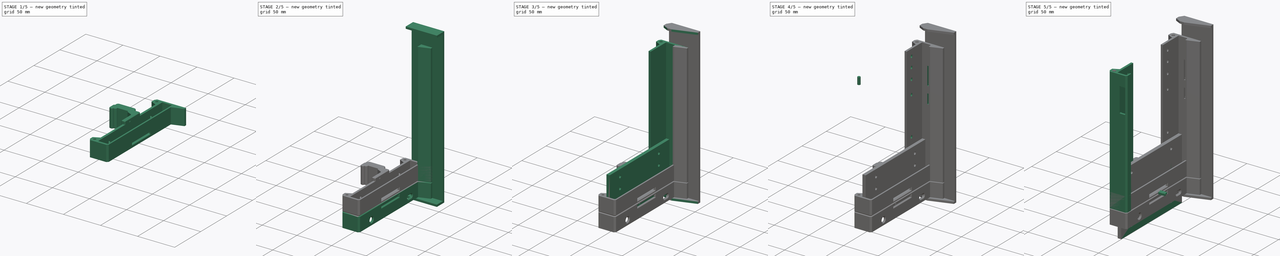
[diagram: build sequence overview — one tinted view per stage of 5, left to right]
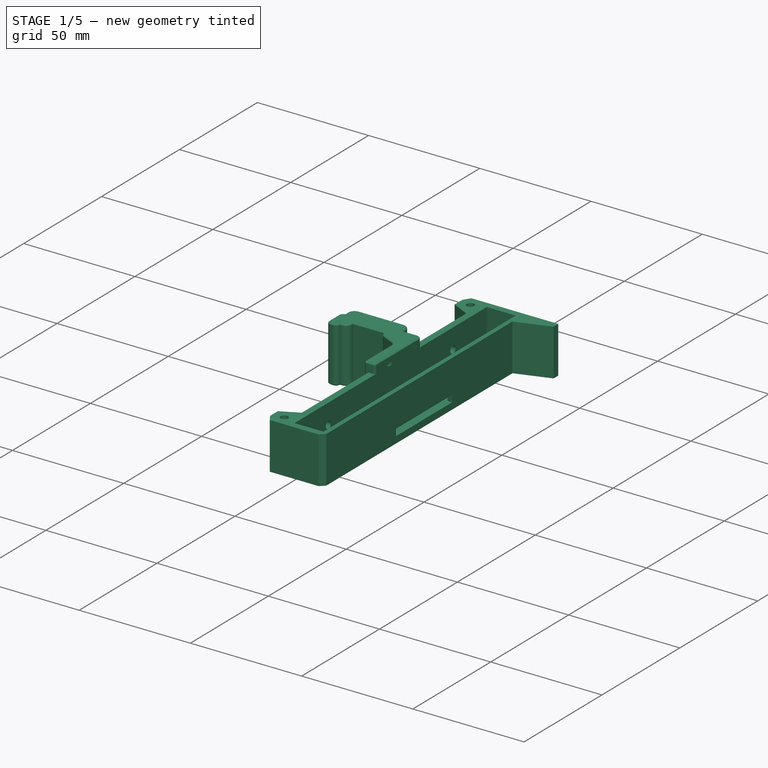
[diagram: stage 1 of 5 — iso view after this stage's code; geometry added in this stage tinted green]
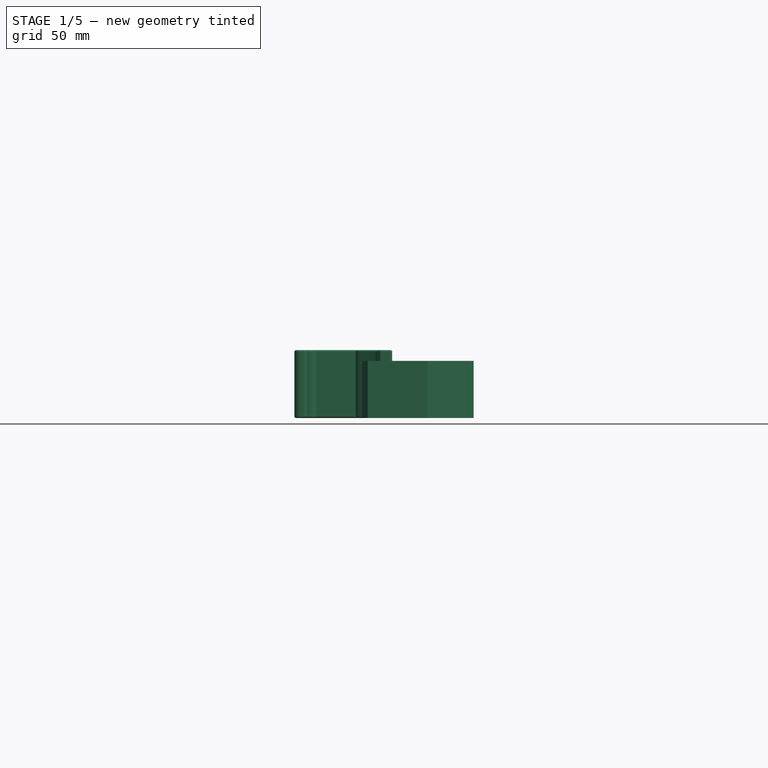
[diagram: stage 1 of 5 — front view after this stage's code; geometry added in this stage tinted green]
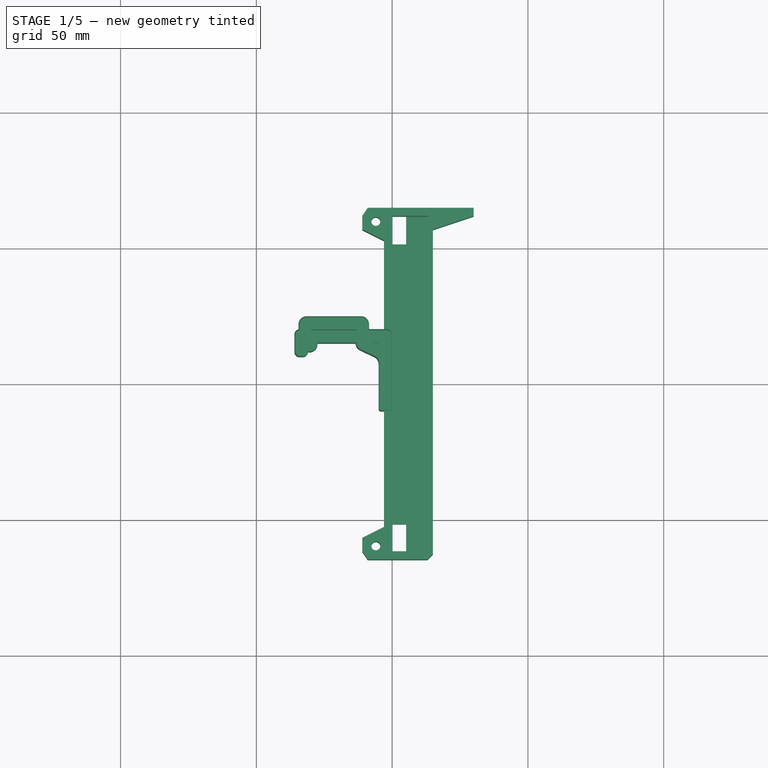
[diagram: stage 1 of 5 — top view after this stage's code; geometry added in this stage tinted green]
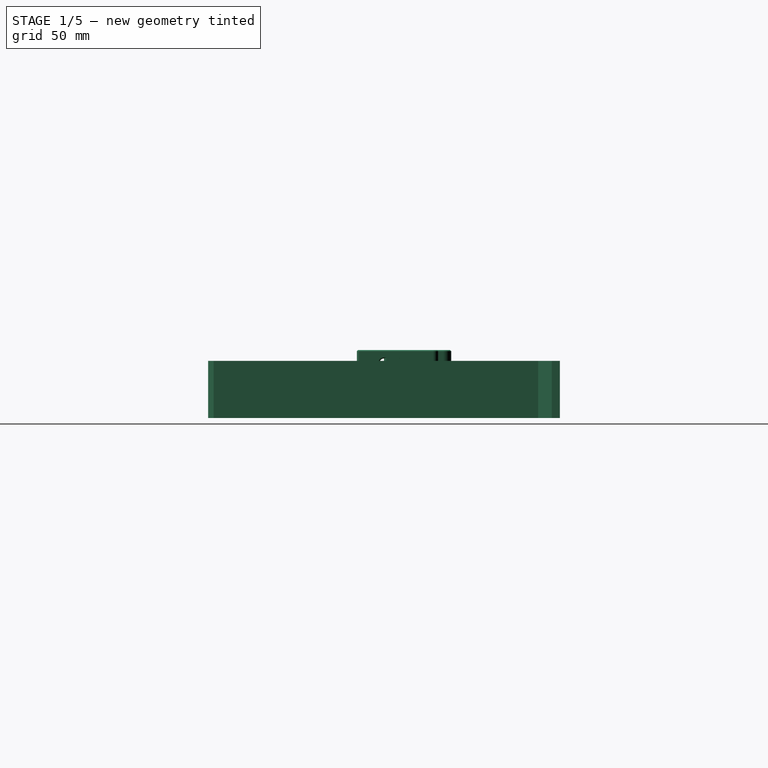
[diagram: stage 1 of 5 — right view after this stage's code; geometry added in this stage tinted green]
FCSTD DOCUMENT  (FreeCAD 0.19R24291 (Git))
Label: tab4-8p-case
License: All rights reserved
LicenseURL: http://en.wikipedia.org/wiki/All_rights_reserved
objects: Sketcher::SketchObject×35, PartDesign::Pocket×25, PartDesign::Chamfer×18, PartDesign::Body×14, PartDesign::Pad×10, PartDesign::Fillet×9, Part::Feature×9, PartDesign::FeatureBase×6, Part::Cylinder×4, Part::Extrusion×3, Part::Cut×3, Part::MultiFuse×2, Part::Chamfer×2, Spreadsheet::Sheet×1, Part::Mirroring×1, Part::Box×1
note: 204 computed .brp shape members not serialized (recipe doc carries the construction recipe); baked Part::Feature solids carry a one-line shape summary decoded from their .brp

FEATURE [Spreadsheet::Sheet] Spreadsheet  label="args"
  cells = A2=case front thickness; B2(case_front_t)=2; E2=case side width; F2(case_side_w)=18; A3=case back thickness; B3(case_back_t)=3; E3=case side wall thickness; F3(case_side_wall_t)=3; A4=back plate thickness; B4(back_plate_t)=5; A5=case side thickness; B5(case_side_t)=3; A8=tablet thickness; B8(tablet_t)=7.5; A9=tablet width; B9(tablet_w)=200; A10=tablet heigh; B10(tablet_h)=123.5; A11=tablet top bottom bezel; B11(tablet_tb_bezel)=7
FEATURE [Sketcher::SketchObject] Sketch
  FullyConstrained = true
  MapMode = 5
  Support = -> [XY_Plane]
  expr: Constraints[8] = <<args>>.tablet_t + <<args>>.back_plate_t + 0.5
  expr: Constraints[9] = <<args>>.tablet_h
  expr: Constraints[39] = <<args>>.case_side_t
  expr: Constraints[10] = <<args>>.tablet_h / 2
  expr: Constraints[24] = <<args>>.case_front_t
  expr: Constraints[45] = <<args>>.case_back_t
  expr: Constraints[23] = <<args>>.case_side_t
  expr: Constraints[46] = <<args>>.tablet_tb_bezel - 2
  expr: Constraints[50] = <<args>>.case_side_t
  sketch-geometry (18):
    g0: LineSegment StartX=0 StartY=61.75 StartZ=0 EndX=13 EndY=61.75 EndZ=0
    g1: LineSegment StartX=13 StartY=61.75 StartZ=0 EndX=13 EndY=-61.75 EndZ=0
    g2: LineSegment StartX=13 StartY=-61.75 StartZ=0 EndX=0 EndY=-61.75 EndZ=0
    g3: LineSegment StartX=0 StartY=-61.75 StartZ=0 EndX=0 EndY=61.75 EndZ=0
    g4: Circle CenterX=-6 CenterY=59.75 CenterZ=0 NormalX=0 NormalY=0 NormalZ=1 AngleXU=0 Radius=1.65
    g5: LineSegment StartX=-9 StartY=64.75 StartZ=0 EndX=30 EndY=64.75 EndZ=0
    g6: LineSegment StartX=30 StartY=64.75 StartZ=0 EndX=30 EndY=61.75 EndZ=0
    g7: LineSegment StartX=30 StartY=61.75 StartZ=0 EndX=15 EndY=56.75 EndZ=0
    g8: LineSegment StartX=15 StartY=56.75 StartZ=0 EndX=15 EndY=-64.75 EndZ=0
    g9: LineSegment StartX=15 StartY=-64.75 StartZ=0 EndX=-9 EndY=-64.75 EndZ=0
    g10: LineSegment StartX=-9 StartY=64.75 StartZ=0 EndX=-11 EndY=61.75 EndZ=0
    g11: LineSegment StartX=-11 StartY=61.75 StartZ=0 EndX=-11 EndY=56.75 EndZ=0
    g12: LineSegment StartX=-11 StartY=56.75 StartZ=0 EndX=-3 EndY=52.75 EndZ=0
    g13: LineSegment StartX=-3 StartY=52.75 StartZ=0 EndX=-3 EndY=-52.75 EndZ=0
    g14: LineSegment StartX=-3 StartY=-52.75 StartZ=0 EndX=-11 EndY=-56.75 EndZ=0
    g15: LineSegment StartX=-11 StartY=-56.75 StartZ=0 EndX=-11 EndY=-61.75 EndZ=0
    g16: LineSegment StartX=-11 StartY=-61.75 StartZ=0 EndX=-9 EndY=-64.75 EndZ=0
    g17: Circle CenterX=-6 CenterY=-59.75 CenterZ=0 NormalX=0 NormalY=0 NormalZ=1 AngleXU=0 Radius=1.65
  constraints (54):
    c: Coincident(g0,g1)
    c: Coincident(g1,g2)
    c: Coincident(g2,g3)
    c: Coincident(g3,g0)
    c: Horizontal(g0)
    c: Horizontal(g2)
    c: Vertical(g1)
    c: Vertical(g3)
    c: DistanceX(g0,g0) = 13
    c: DistanceY(g3,g3) = 123.5
    c: DistanceY(g-1,g0) = 61.75
    c: DistanceX(g-1,g0) = 0
    c: Radius(g4) = 1.65
    c: DistanceY(g0,g4) = -2
    c: DistanceX(g4,g0) = 6
    c: Horizontal(g5)
    c: Coincident(g5,g6)
    c: Vertical(g6)
    c: Coincident(g6,g7)
    c: Coincident(g7,g8)
    c: Vertical(g8)
    c: Coincident(g8,g9)
    c: Horizontal(g9)
    c: DistanceY(g0,g5) = 3
    c: DistanceX(g0,g7) = 2
    c: Coincident(g5,g10)
    c: Coincident(g10,g11)
    c: Vertical(g11)
    c: Coincident(g11,g12)
    c: Coincident(g12,g13)
    c: Vertical(g13)
    c: Coincident(g13,g14)
    c: Coincident(g14,g15)
    c: Vertical(g15)
    c: Coincident(g15,g16)
    c: Coincident(g16,g9)
    c: Radius(g17) = 1.65
    c: Vertical(g17,g4)
    c: DistanceY(g2,g17) = 2
    c: DistanceY(g8,g1) = 3
    c: DistanceY(g17,g14) = 3
    c: DistanceY(g15,g17) = 2
    c: DistanceY(g4,g10) = 2
    c: DistanceY(g11,g4) = 3
    c: DistanceX(g10,g4) = 5
    c: DistanceX(g12,g0) = 3
    c: DistanceY(g7,g0) = 5
    c: DistanceX(g10,g5) = 2
    c: DistanceY(g12,g11) = 4
    c: DistanceX(g7,g5) = 15
    c: DistanceY(g6,g6) = 3
    c: DistanceX(g15,g9) = 2
    c: DistanceX(g15,g17) = 5
    c: DistanceY(g14,g13) = 4
FEATURE [PartDesign::Pad] Pad
  Direction = (1,1,1)
  Length = 21
  Length2 = 100
  Profile = -> Sketch
  Type = 0
  expr: Length = <<args>>.case_side_wall_t + <<args>>.case_side_w
FEATURE [Sketcher::SketchObject] Sketch001
  FullyConstrained = true
  MapMode = 5
  Placement = pos=(0,0,21) rot=(0,0,1;0rad)
  Support = -> [Pad]
  expr: Constraints[9] = <<args>>.tablet_t + <<args>>.back_plate_t + 0.5
  expr: Constraints[10] = <<args>>.tablet_h
  expr: Constraints[11] = <<args>>.tablet_h / 2
  sketch-geometry (4):
    g0: LineSegment StartX=0 StartY=61.75 StartZ=0 EndX=13 EndY=61.75 EndZ=0
    g1: LineSegment StartX=13 StartY=61.75 StartZ=0 EndX=13 EndY=-61.75 EndZ=0
    g2: LineSegment StartX=13 StartY=-61.75 StartZ=0 EndX=0 EndY=-61.75 EndZ=0
    g3: LineSegment StartX=0 StartY=-61.75 StartZ=0 EndX=0 EndY=61.75 EndZ=0
  constraints (12):
    c: Coincident(g0,g1)
    c: Coincident(g1,g2)
    c: Coincident(g2,g3)
    c: Coincident(g3,g0)
    c: Horizontal(g0)
    c: Horizontal(g2)
    c: Vertical(g1)
    c: Vertical(g3)
    c: PointOnObject(g0,g-2)
    c: DistanceX(g0,g0) = 13
    c: DistanceY(g3,g3) = 123.5
    c: DistanceY(g-1,g0) = 61.75
FEATURE [PartDesign::Pocket] Pocket
  BaseFeature = -> Pad
  Length = 18
  Length2 = 100
  Profile = -> Sketch001
  Type = 0
  expr: Length = <<args>>.case_side_w
FEATURE [Sketcher::SketchObject] Sketch002
  FullyConstrained = true
  MapMode = 5
  Placement = pos=(15,0,0) rot=(0.57735,0.57735,0.57735;2.0944rad)
  Support = -> [Pocket]
  sketch-geometry (4):
    g0: LineSegment StartX=-18 StartY=6 StartZ=0 EndX=18 EndY=6 EndZ=0
    g1: LineSegment StartX=18 StartY=6 StartZ=0 EndX=18 EndY=3 EndZ=0
    g2: LineSegment StartX=18 StartY=3 StartZ=0 EndX=-18 EndY=3 EndZ=0
    g3: LineSegment StartX=-18 StartY=3 StartZ=0 EndX=-18 EndY=6 EndZ=0
  constraints (12):
    c: Coincident(g0,g1)
    c: Coincident(g1,g2)
    c: Coincident(g2,g3)
    c: Coincident(g3,g0)
    c: Horizontal(g0)
    c: Horizontal(g2)
    c: Vertical(g1)
    c: Vertical(g3)
    c: DistanceY(g-1,g0) = 6
    c: DistanceY(g3,g3) = 3
    c: DistanceX(g0,g0) = 36
    c: DistanceX(g-1,g1) = 18
FEATURE [PartDesign::Pocket] Pocket001
  BaseFeature = -> Pocket
  Length = 0
  Length2 = 100
  Profile = -> Sketch002
  Refine = true
  Type = 3
  UpToFace = -> Pocket [Face18]
FEATURE [Sketcher::SketchObject] Sketch003
  FullyConstrained = true
  MapMode = 5
  Placement = pos=(0,64.75,0) rot=(0,0.707107,0.707107;3.14159rad)
  Support = -> [Pocket001]
  sketch-geometry (1):
    g0: Circle CenterX=-22 CenterY=12 CenterZ=0 NormalX=0 NormalY=0 NormalZ=1 AngleXU=0 Radius=1.95
  constraints (3):
    c: Radius(g0) = 1.95
    c: DistanceY(g-1,g0) = 12
    c: DistanceX(g0,g-1) = 22
FEATURE [PartDesign::Pocket] Pocket002
  BaseFeature = -> Pocket001
  Length = 4
  Length2 = 100
  Profile = -> Sketch003
  Type = 0
FEATURE [Sketcher::SketchObject] Sketch004
  FullyConstrained = true
  MapMode = 5
  Placement = pos=(-3,0,0) rot=(0.57735,-0.57735,-0.57735;2.0944rad)
  Support = -> [Pocket002]
  sketch-geometry (3):
    g0: Circle CenterX=0 CenterY=12 CenterZ=0 NormalX=0 NormalY=0 NormalZ=1 AngleXU=0 Radius=1.65
    g1: Circle CenterX=-40 CenterY=12 CenterZ=0 NormalX=0 NormalY=0 NormalZ=1 AngleXU=0 Radius=1.65
    g2: Circle CenterX=40 CenterY=12 CenterZ=0 NormalX=0 NormalY=0 NormalZ=1 AngleXU=0 Radius=1.65
  constraints (9):
    c: PointOnObject(g0,g-2)
    c: Horizontal(g1,g0)
    c: Horizontal(g0,g2)
    c: Radius(g1) = 1.65
    c: Radius(g0) = 1.65
    c: Radius(g2) = 1.65
    c: DistanceY(g-1,g0) = 12
    c: DistanceX(g1,g0) = 40
    c: DistanceX(g0,g2) = 40
FEATURE [PartDesign::Pocket] Pocket003
  BaseFeature = -> Pocket002
  Length = 0
  Length2 = 100
  Profile = -> Sketch004
  Refine = true
  Type = 3
  UpToFace = -> Pocket002 [Face21]
FEATURE [Sketcher::SketchObject] Sketch005
  FullyConstrained = true
  MapMode = 5
  Placement = pos=(0,0,3) rot=(0,0,1;0rad)
  Support = -> [Pocket003]
  expr: Constraints[20] = <<args>>.tablet_h / 2
  expr: Constraints[21] = <<args>>.tablet_h / 2
  sketch-geometry (8):
    g0: LineSegment StartX=0 StartY=61.75 StartZ=0 EndX=5.15 EndY=61.75 EndZ=0
    g1: LineSegment StartX=5.15 StartY=61.75 StartZ=0 EndX=5.15 EndY=51.6 EndZ=0
    g2: LineSegment StartX=5.15 StartY=51.6 StartZ=0 EndX=0 EndY=51.6 EndZ=0
    g3: LineSegment StartX=0 StartY=51.6 StartZ=0 EndX=0 EndY=61.75 EndZ=0
    g4: LineSegment StartX=0 StartY=-61.75 StartZ=0 EndX=5.15 EndY=-61.75 EndZ=0
    g5: LineSegment StartX=5.15 StartY=-61.75 StartZ=0 EndX=5.15 EndY=-51.6 EndZ=0
    g6: LineSegment StartX=5.15 StartY=-51.6 StartZ=0 EndX=0 EndY=-51.6 EndZ=0
    g7: LineSegment StartX=0 StartY=-51.6 StartZ=0 EndX=0 EndY=-61.75 EndZ=0
  constraints (24):
    c: Coincident(g0,g1)
    c: Coincident(g1,g2)
    c: Coincident(g2,g3)
    c: Coincident(g3,g0)
    c: Horizontal(g0)
    c: Horizontal(g2)
    c: Vertical(g1)
    c: Vertical(g3)
    c: PointOnObject(g0,g-2)
    c: Coincident(g4,g5)
    c: Coincident(g5,g6)
    c: Coincident(g6,g7)
    c: Coincident(g7,g4)
    c: Horizontal(g4)
    c: Horizontal(g6)
    c: Vertical(g5)
    c: Vertical(g7)
    c: PointOnObject(g4,g-2)
    c: DistanceY(g1,g1) = 10.15
    c: DistanceY(g5,g5) = 10.15
    c: DistanceY(g4,g-1) = 61.75
    c: DistanceY(g-1,g0) = 61.75
    c: DistanceX(g2,g2) = 5.15
    c: DistanceX(g6,g6) = 5.15
FEATURE [PartDesign::Pocket] Pocket004
  BaseFeature = -> Pocket003
  Length = 0
  Length2 = 100
  Profile = -> Sketch005
  Type = 3
  UpToFace = -> Pocket003 [Face3]
FEATURE [PartDesign::Chamfer] Chamfer
  Angle = 45
  Base = -> Pocket004 [Edge51]
  BaseFeature = -> Pocket004
  ChamferType = 0
  FlipDirection = false
  Size = 2
  Size2 = 1
  SupportTransform = false
FEATURE [PartDesign::Body] Body003  label="side-right"
  BaseFeature = -> Body
  Group = -> [Clone,Sketch032,Pad007]
  Origin = -> Origin002
  Placement = pos=(0,0,-21) rot=(0,0,1;0rad)
  Tip = -> Pad007
FEATURE [Sketcher::SketchObject] Sketch033
  FullyConstrained = true
  MapMode = 5
  Support = -> [XY_Plane012]
  sketch-geometry (15):
    g0: LineSegment StartX=0 StartY=-10 StartZ=0 EndX=0 EndY=12.5 EndZ=0
    g1: LineSegment StartX=0 StartY=12.5 StartZ=0 EndX=-8.5 EndY=16.4636 EndZ=0
    g2: LineSegment StartX=-8.5 StartY=16.4636 StartZ=0 EndX=-8.5 EndY=24.75 EndZ=0
    g3: LineSegment StartX=-8.5 StartY=24.75 StartZ=0 EndX=-34.5 EndY=24.75 EndZ=0
    g4: LineSegment StartX=-34.5 StartY=24.75 StartZ=0 EndX=-34.5 EndY=11.75 EndZ=0
    g5: LineSegment StartX=-34.5 StartY=11.75 StartZ=0 EndX=-27.5 EndY=11.75 EndZ=0
    g6: LineSegment StartX=-27.5 StartY=11.75 StartZ=0 EndX=-27.5 EndY=16.75 EndZ=0
    g7: LineSegment StartX=-27.5 StartY=16.75 StartZ=0 EndX=-29.5 EndY=16.75 EndZ=0
    g8: LineSegment StartX=-29.5 StartY=16.75 StartZ=0 EndX=-29.5 EndY=19.75 EndZ=0
    g9: LineSegment StartX=-29.5 StartY=19.75 StartZ=0 EndX=-13.5 EndY=19.75 EndZ=0
    g10: LineSegment StartX=-13.5 StartY=19.75 StartZ=0 EndX=-13.5 EndY=13.2783 EndZ=0
    g11: LineSegment StartX=-13.5 StartY=13.2783 StartZ=0 EndX=-5 EndY=9.31465 EndZ=0
    g12: LineSegment StartX=-5 StartY=9.31465 StartZ=0 EndX=-5 EndY=-10 EndZ=0
    g13: LineSegment StartX=-5 StartY=-10 StartZ=0 EndX=0 EndY=-10 EndZ=0
    g14: LineSegment StartX=-8.5 StartY=16.4636 StartZ=0 EndX=-10.6131 EndY=11.9321 EndZ=0
  constraints (45):
    c: PointOnObject(g0,g-2)
    c: PointOnObject(g0,g-2)
    c: Coincident(g0,g1)
    c: Coincident(g1,g2)
    c: Vertical(g2)
    c: Coincident(g2,g3)
    c: Horizontal(g3)
    c: Coincident(g3,g4)
    c: Vertical(g4)
    c: Coincident(g4,g5)
    c: Horizontal(g5)
    c: Coincident(g5,g6)
    c: Vertical(g6)
    c: Coincident(g6,g7)
    c: Horizontal(g7)
    c: Coincident(g7,g8)
    c: Vertical(g8)
    c: Coincident(g8,g9)
    c: Coincident(g9,g10)
    c: Vertical(g10)
    c: Coincident(g10,g11)
    c: Coincident(g11,g12)
    c: Vertical(g12)
    c: Coincident(g12,g13)
    c: Coincident(g13,g0)
    c: Horizontal(g13)
    c: DistanceY(g0,g-1) = 10
    c: DistanceY(g-1,g0) = 12.5
    c: Angle(g1,g0) = 2.00713
    c: DistanceX(g1,g0) = 8.5
    c: DistanceX(g13,g13) = 5
    c: Parallel(g11,g1)
    c: Coincident(g14,g1)
    c: PointOnObject(g14,g11)
    c: Perpendicular(g11,g14)
    c: Distance(g14) = 5
    c: DistanceX(g10,g1) = 5
    c: Horizontal(g9)
    c: DistanceY(g-1,g2) = 24.75
    c: DistanceY(g9,g2) = 5
    c: DistanceX(g9,g9) = 16
    c: DistanceY(g8,g8) = 3
    c: DistanceX(g7,g7) = 2
    c: DistanceX(g3,g8) = 5
    c: DistanceY(g6,g6) = 5
FEATURE [PartDesign::Pad] Pad008
  Direction = (1,1,1)
  Length = 25
  Length2 = 100
  Profile = -> Sketch033
  Type = 0
FEATURE [Sketcher::SketchObject] Sketch034
  FullyConstrained = true
  MapMode = 5
  Placement = pos=(-5,0,0) rot=(0.57735,-0.57735,-0.57735;2.0944rad)
  Support = -> [Pad008]
  sketch-geometry (2):
    g0: Circle CenterX=0 CenterY=20.25 CenterZ=0 NormalX=0 NormalY=0 NormalZ=1 AngleXU=0 Radius=1.65
    g1: Circle CenterX=0 CenterY=4.75 CenterZ=0 NormalX=0 NormalY=0 NormalZ=1 AngleXU=0 Radius=1.65
  constraints (6):
    c: PointOnObject(g0,g-2)
    c: PointOnObject(g1,g-2)
    c: Equal(g1,g0)
    c: Radius(g0) = 1.65
    c: DistanceY(g1,g0) = 15.5
    c: DistanceY(g-1,g1) = 4.75
FEATURE [PartDesign::Pocket] Pocket024
  BaseFeature = -> Pad008
  Length = 5
  Length2 = 100
  Profile = -> Sketch034
  Type = 1
FEATURE [PartDesign::Fillet] Fillet007
  Base = -> Pocket024 [Edge4,Edge34,Edge40,Edge41,Edge43,Edge42,Edge48,Edge39]
  BaseFeature = -> Pocket024
  Radius = 3
  SupportTransform = false
FEATURE [PartDesign::Fillet] Fillet008
  Base = -> Fillet007 [Edge70,Edge3,Edge30]
  BaseFeature = -> Fillet007
  Radius = 1
  SupportTransform = false
FEATURE [PartDesign::Chamfer] Chamfer011007
  Angle = 45
  Base = -> Fillet008 [Face2,Edge59,Edge57,Face5,Edge5,Edge6]
  BaseFeature = -> Fillet008
  ChamferType = 0
  FlipDirection = false
  Size = 0.4
  Size2 = 1
  SupportTransform = false
FEATURE [PartDesign::Body] Body006009
  Group = -> [Sketch033,Pad008,Sketch034,Pocket024,Fillet007,Fillet008,Chamfer011007]
  Origin = -> Origin012
  Placement = pos=(-3,40,0) rot=(0,0,1;0rad)
  Tip = -> Chamfer011007
FEATURE [Sketcher::SketchObject] Sketch035
  FullyConstrained = true
  MapMode = 5
  Support = -> [XY_Plane013]
  sketch-geometry (8):
    g0: LineSegment StartX=0 StartY=0 StartZ=0 EndX=0 EndY=20 EndZ=0
    g1: LineSegment StartX=0 StartY=20 StartZ=0 EndX=-36 EndY=20 EndZ=0
    g2: LineSegment StartX=-36 StartY=20 StartZ=0 EndX=-36 EndY=10 EndZ=0
    g3: LineSegment StartX=-36 StartY=10 StartZ=0 EndX=-31 EndY=10 EndZ=0
    g4: LineSegment StartX=-31 StartY=10 StartZ=0 EndX=-31 EndY=15 EndZ=0
    g5: LineSegment StartX=-31 StartY=15 StartZ=0 EndX=-5 EndY=15 EndZ=0
    g6: LineSegment StartX=-5 StartY=15 StartZ=0 EndX=-5 EndY=0 EndZ=0
    g7: LineSegment StartX=-5 StartY=0 StartZ=0 EndX=0 EndY=0 EndZ=0
  constraints (23):
    c: Coincident(g0,g-1)
    c: PointOnObject(g0,g-2)
    c: Coincident(g0,g1)
    c: Horizontal(g1)
    c: Coincident(g1,g2)
    c: Vertical(g2)
    c: Coincident(g2,g3)
    c: Horizontal(g3)
    c: Coincident(g3,g4)
    c: Vertical(g4)
    c: Coincident(g4,g5)
    c: Horizontal(g5)
    c: Coincident(g5,g6)
    c: PointOnObject(g6,g-1)
    c: Vertical(g6)
    c: Coincident(g6,g7)
    c: Coincident(g7,g0)
    c: DistanceX(g7,g7) = 5
    c: DistanceX(g1,g1) = 36
    c: DistanceX(g3,g3) = 5
    c: DistanceY(g0,g0) = 20
    c: DistanceY(g2,g2) = 10
    c: DistanceY(g4,g1) = 5
FEATURE [PartDesign::Pad] Pad009
  Direction = (1,1,1)
  Length = 25
  Length2 = 100
  Profile = -> Sketch035
  Type = 0
FEATURE [Sketcher::SketchObject] Sketch036
  FullyConstrained = true
  MapMode = 5
  Placement = pos=(0,0,0) rot=(0.57735,0.57735,0.57735;2.0944rad)
  Support = -> [Pad009]
  sketch-geometry (2):
    g0: Circle CenterX=7 CenterY=4.75 CenterZ=0 NormalX=0 NormalY=0 NormalZ=1 AngleXU=0 Radius=1.65
    g1: Circle CenterX=7 CenterY=20.25 CenterZ=0 NormalX=0 NormalY=0 NormalZ=1 AngleXU=0 Radius=1.65
  constraints (6):
    c: DistanceX(g-1,g0) = 7
    c: Vertical(g0,g1)
    c: DistanceY(g0,g1) = 15.5
    c: DistanceY(g-1,g0) = 4.75
    c: Equal(g0,g1)
    c: Radius(g1) = 1.65
FEATURE [PartDesign::Pocket] Pocket025
  BaseFeature = -> Pad009
  Length = 5
  Length2 = 100
  Profile = -> Sketch036
  Type = 1
FEATURE [PartDesign::Fillet] Fillet009
  Base = -> Pocket025 [Edge27,Edge4,Edge7,Edge22,Edge28,Edge29,Edge30]
  BaseFeature = -> Pocket025
  Radius = 2
  SupportTransform = false
FEATURE [PartDesign::Fillet] Fillet010
  Base = -> Fillet009 [Edge3]
  BaseFeature = -> Fillet009
  Radius = 1
  SupportTransform = false
FEATURE [PartDesign::Chamfer] Chamfer011008
  Angle = 45
  Base = -> Fillet010 [Face2,Edge5,Edge6,Edge42,Edge40,Face5]
  BaseFeature = -> Fillet010
  ChamferType = 0
  FlipDirection = false
  Size = 0.4
  Size2 = 1
  SupportTransform = false
FEATURE [PartDesign::Body] Body006010
  Group = -> [Sketch035,Pad009,Sketch036,Pocket025,Fillet009,Fillet010,Chamfer011008]
  Origin = -> Origin013
  Tip = -> Chamfer011008
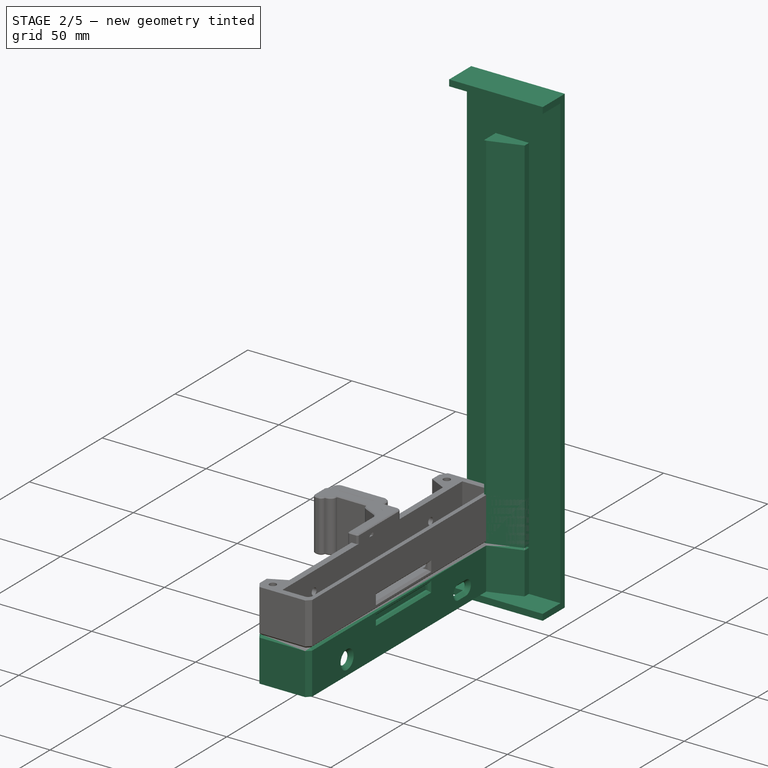
[diagram: stage 2 of 5 — iso view after this stage's code; geometry added in this stage tinted green]
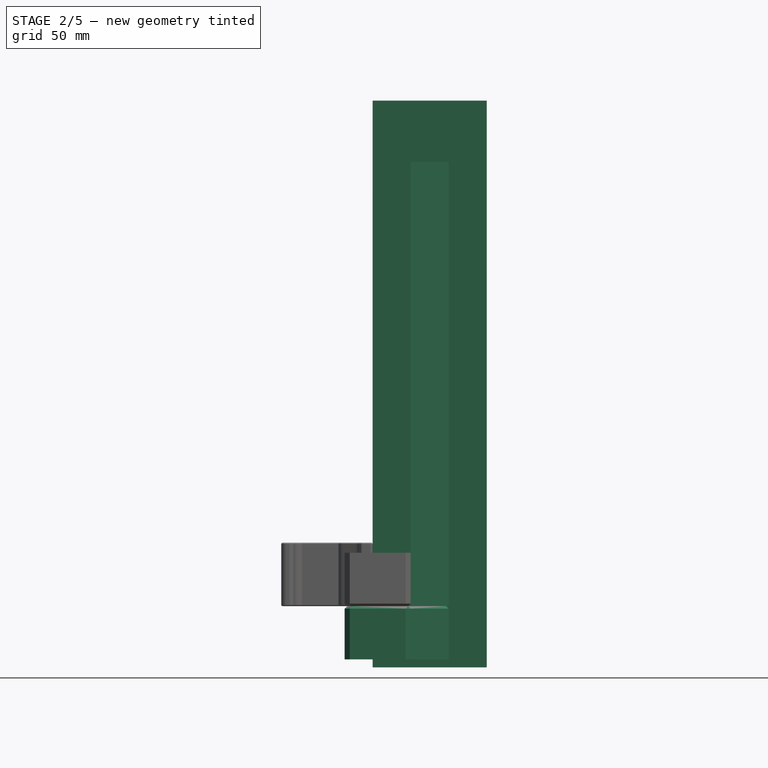
[diagram: stage 2 of 5 — front view after this stage's code; geometry added in this stage tinted green]
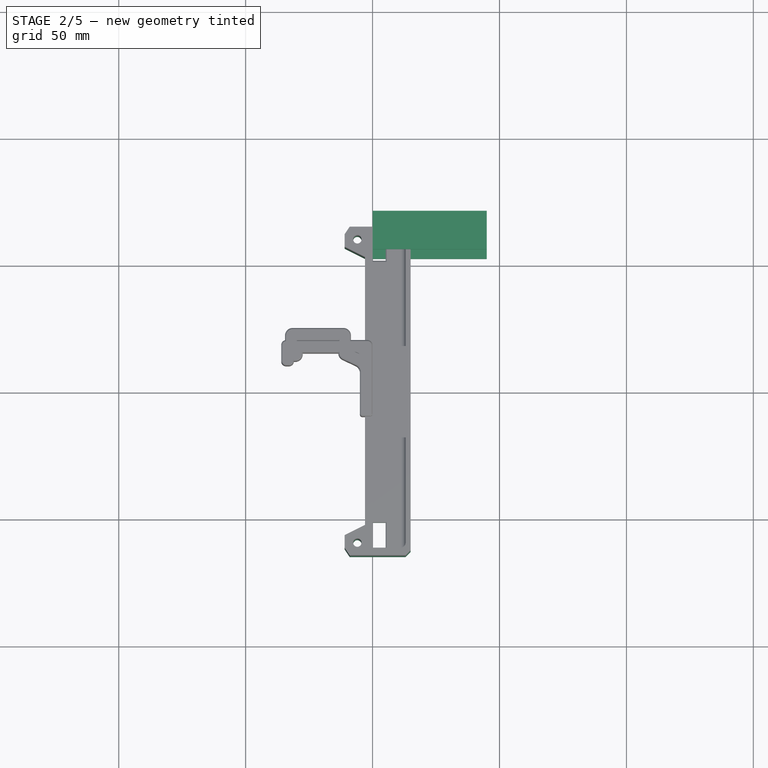
[diagram: stage 2 of 5 — top view after this stage's code; geometry added in this stage tinted green]
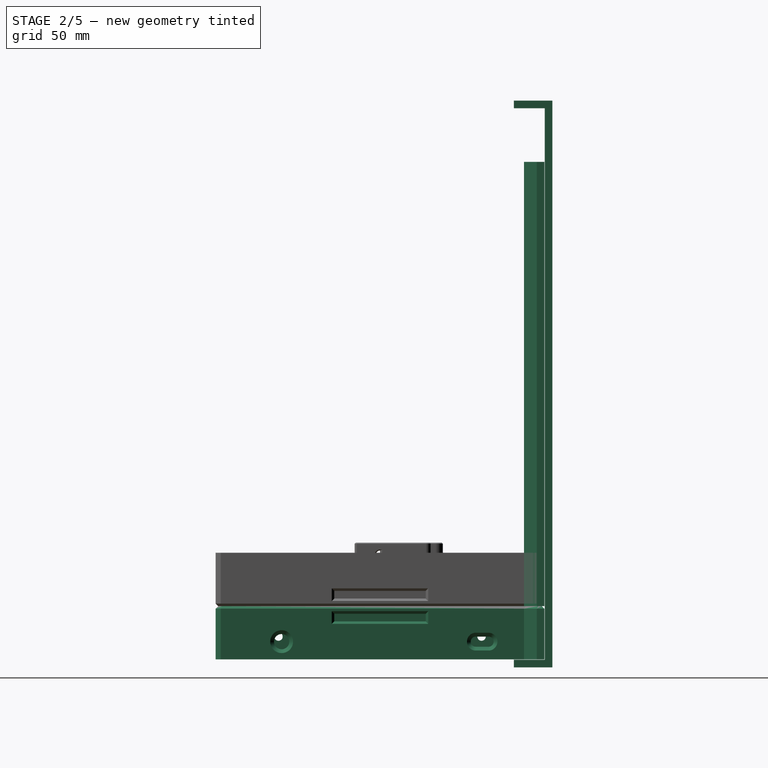
[diagram: stage 2 of 5 — right view after this stage's code; geometry added in this stage tinted green]
FEATURE [PartDesign::Chamfer] Chamfer001
  Angle = 45
  Base = -> Chamfer [Edge54,Edge55,Edge56,Edge43,Edge18,Edge23,Edge19,Edge20,Edge21,Edge22,Edge17,Edge15,Edge14,Edge16]
  BaseFeature = -> Chamfer
  ChamferType = 0
  FlipDirection = false
  Size = 0.4
  Size2 = 1
  SupportTransform = false
FEATURE [PartDesign::Chamfer] Chamfer002
  Angle = 45
  Base = -> Chamfer001 [Edge8,Edge6,Edge4,Edge2,Edge10,Edge12,Edge14,Edge13,Edge3,Edge5,Edge7,Edge9,Edge11,Edge29,Edge31,Edge30,Edge32]
  BaseFeature = -> Chamfer001
  ChamferType = 0
  FlipDirection = false
  Size = 1
  Size2 = 1
  SupportTransform = false
FEATURE [PartDesign::Fillet] Fillet
  Base = -> Chamfer002 [Edge156,Edge153,Edge155,Edge145]
  BaseFeature = -> Chamfer002
  Radius = 2
  SupportTransform = false
FEATURE [PartDesign::Chamfer] Chamfer003
  Angle = 45
  Base = -> Fillet [Edge89,Edge88,Edge87,Edge86]
  BaseFeature = -> Fillet
  ChamferType = 0
  FlipDirection = false
  Size = 0.4
  Size2 = 1
  SupportTransform = false
FEATURE [PartDesign::Body] Body  label="side-base"
  Group = -> [Sketch,Pad,Sketch001,Pocket,Sketch002,Pocket001,Sketch003,Pocket002,Sketch004,Pocket003,Sketch005,Pocket004,Chamfer,Chamfer001,Chamfer002,Fillet,Chamfer003]
  Origin = -> Origin
  Tip = -> Chamfer003
FEATURE [Part::Feature] Body001  label="side-base001"
  shape: bbox 41 x 129.5 x 21 mm, 78 faces (baked)
FEATURE [Part::Mirroring] Part__Mirroring  label="side-base001 (Mirror #1)"
  Base = (0,0,0)
  Normal = (0,0,1)
  Source = -> Body001
FEATURE [PartDesign::FeatureBase] BaseFeature
  BaseFeature = -> Part__Mirroring
FEATURE [Sketcher::SketchObject] Sketch006
  FullyConstrained = true
  MapMode = 5
  Placement = pos=(0,0,-3) rot=(1,0,0;3.14159rad)
  Support = -> [BaseFeature]
  expr: Constraints[27] = <<args>>.tablet_t + <<args>>.back_plate_t + 0.5
  expr: Constraints[28] = <<args>>.tablet_h
  sketch-geometry (12):
    g0: LineSegment StartX=5 StartY=33.25 StartZ=0 EndX=13 EndY=33.25 EndZ=0
    g1: LineSegment StartX=13 StartY=33.25 StartZ=0 EndX=13 EndY=25.25 EndZ=0
    g2: LineSegment StartX=13 StartY=25.25 StartZ=0 EndX=5 EndY=25.25 EndZ=0
    g3: LineSegment StartX=5 StartY=25.25 StartZ=0 EndX=5 EndY=33.25 EndZ=0
    g4: LineSegment StartX=5 StartY=-22.75 StartZ=0 EndX=13 EndY=-22.75 EndZ=0
    g5: LineSegment StartX=13 StartY=-22.75 StartZ=0 EndX=13 EndY=-38.75 EndZ=0
    g6: LineSegment StartX=13 StartY=-38.75 StartZ=0 EndX=5 EndY=-38.75 EndZ=0
    g7: LineSegment StartX=5 StartY=-38.75 StartZ=0 EndX=5 EndY=-22.75 EndZ=0
    g8: LineSegment StartX=0 StartY=61.75 StartZ=0 EndX=13 EndY=61.75 EndZ=0
    g9: LineSegment StartX=13 StartY=61.75 StartZ=0 EndX=13 EndY=-61.75 EndZ=0
    g10: LineSegment StartX=13 StartY=-61.75 StartZ=0 EndX=0 EndY=-61.75 EndZ=0
    g11: LineSegment StartX=0 StartY=-61.75 StartZ=0 EndX=0 EndY=61.75 EndZ=0
  constraints (36):
    c: Coincident(g0,g1)
    c: Coincident(g1,g2)
    c: Coincident(g2,g3)
    c: Coincident(g3,g0)
    c: Horizontal(g0)
    c: Horizontal(g2)
    c: Vertical(g1)
    c: Vertical(g3)
    c: Coincident(g4,g5)
    c: Coincident(g5,g6)
    c: Coincident(g6,g7)
    c: Coincident(g7,g4)
    c: Horizontal(g4)
    c: Horizontal(g6)
    c: Vertical(g5)
    c: Vertical(g7)
    c: Vertical(g4,g1)
    c: Vertical(g2,g4)
    c: Coincident(g8,g9)
    c: Coincident(g9,g10)
    c: Coincident(g10,g11)
    c: Coincident(g11,g8)
    c: Horizontal(g8)
    c: Horizontal(g10)
    c: Vertical(g9)
    c: Vertical(g11)
    c: PointOnObject(g8,g-2)
    c: DistanceX(g8,g8) = 13
    c: DistanceY(g9,g9) = 123.5
    c: DistanceX(g0,g0) = 8
    c: DistanceX(g0,g8) = 0
    c: DistanceY(g7,g7) = 16
    c: DistanceY(g0,g8) = 28.5
    c: DistanceY(g3,g3) = 8
    c: DistanceY(g-1,g2) = 25.25
    c: DistanceY(g4,g-1) = 22.75
FEATURE [PartDesign::Pocket] Pocket005
  BaseFeature = -> BaseFeature
  Length = 5
  Length2 = 100
  Profile = -> Sketch006
  Type = 1
FEATURE [PartDesign::Chamfer] Chamfer004
  Angle = 45
  Base = -> Pocket005 [Edge95,Edge92,Edge184,Edge90,Edge74,Edge71,Edge165,Edge69]
  BaseFeature = -> Pocket005
  ChamferType = 0
  FlipDirection = false
  Size = 0.4
  Size2 = 1
  SupportTransform = false
FEATURE [Sketcher::SketchObject] Sketch007
  ExternalGeometry = -> [Chamfer004]
  FullyConstrained = true
  MapMode = 5
  Placement = pos=(15,0,0) rot=(0.57735,0.57735,0.57735;2.0944rad)
  Support = -> [Chamfer004]
  expr: Constraints[0] = <<args>>.tablet_h / 2 - 23
  sketch-geometry (5):
    g0: Circle CenterX=-38.75 CenterY=-14 CenterZ=0 NormalX=0 NormalY=0 NormalZ=1 AngleXU=0 Radius=3
    g1: ArcOfCircle CenterX=37.75 CenterY=-14 CenterZ=0 NormalX=0 NormalY=0 NormalZ=1 AngleXU=0 Radius=2 StartAngle=1.5708 EndAngle=4.71239
    g2: ArcOfCircle CenterX=42.75 CenterY=-14 CenterZ=0 NormalX=0 NormalY=0 NormalZ=1 AngleXU=0 Radius=2 StartAngle=4.71239 EndAngle=7.85398
    g3: LineSegment StartX=37.75 StartY=-16 StartZ=0 EndX=42.75 EndY=-16 EndZ=0
    g4: LineSegment StartX=37.75 StartY=-12 StartZ=0 EndX=42.75 EndY=-12 EndZ=0
  constraints (13):
    c: DistanceX(g0,g-1) = 38.75
    c: DistanceY(g0,g-1) = 14
    c: Radius(g0) = 3
    c: Tangent(g1,g4) = 1.5708
    c: Tangent(g1,g3) = -1.5708
    c: Tangent(g3,g2) = -1.5708
    c: Tangent(g4,g2) = 1.5708
    c: Horizontal(g3)
    c: Equal(g1,g2)
    c: DistanceX(g1,g2) = 5
    c: Radius(g1) = 2
    c: DistanceY(g-3,g2) = 7
    c: DistanceX(g-1,g1) = 37.75
FEATURE [PartDesign::Pocket] Pocket006
  BaseFeature = -> Chamfer004
  Length = 0
  Length2 = 100
  Profile = -> Sketch007
  Type = 3
  UpToFace = -> Chamfer004 [Face54]
FEATURE [PartDesign::FeatureBase] Clone
  BaseFeature = -> Body
FEATURE [PartDesign::Chamfer] Chamfer013
  Angle = 45
  Base = -> Pocket006 [Edge234,Edge230]
  BaseFeature = -> Pocket006
  ChamferType = 0
  FlipDirection = false
  Size = 1.5
  Size2 = 1
  SupportTransform = false
FEATURE [PartDesign::Body] Body006006  label="power-button"
  Group = -> [Sketch021,Pad003,Chamfer011006]
  Origin = -> Origin009
  Placement = pos=(10.5,63.5,97) rot=(0,-1,0;1.5708rad)
  Tip = -> Chamfer011006
FEATURE [Sketcher::SketchObject] Sketch029
  FullyConstrained = true
  MapMode = 5
  Placement = pos=(0,0,0) rot=(0.57735,0.57735,0.57735;2.0944rad)
  Support = -> [YZ_Plane011]
  sketch-geometry (8):
    g0: LineSegment StartX=52.75 StartY=196.15 StartZ=0 EndX=64.9 EndY=196.15 EndZ=0
    g1: LineSegment StartX=64.9 StartY=196.15 StartZ=0 EndX=64.9 EndY=-21.15 EndZ=0
    g2: LineSegment StartX=64.9 StartY=-21.15 StartZ=0 EndX=52.75 EndY=-21.15 EndZ=0
    g3: LineSegment StartX=52.75 StartY=-21.15 StartZ=0 EndX=52.75 EndY=-24.15 EndZ=0
    g4: LineSegment StartX=52.75 StartY=-24.15 StartZ=0 EndX=67.9 EndY=-24.15 EndZ=0
    g5: LineSegment StartX=67.9 StartY=-24.15 StartZ=0 EndX=67.9 EndY=199.15 EndZ=0
    g6: LineSegment StartX=67.9 StartY=199.15 StartZ=0 EndX=52.75 EndY=199.15 EndZ=0
    g7: LineSegment StartX=52.75 StartY=199.15 StartZ=0 EndX=52.75 EndY=196.15 EndZ=0
  constraints (24):
    c: Horizontal(g0)
    c: Coincident(g0,g1)
    c: Vertical(g1)
    c: Coincident(g1,g2)
    c: Horizontal(g2)
    c: Coincident(g2,g3)
    c: Coincident(g3,g4)
    c: Horizontal(g4)
    c: Coincident(g4,g5)
    c: Vertical(g5)
    c: Coincident(g5,g6)
    c: Horizontal(g6)
    c: Coincident(g6,g7)
    c: Coincident(g7,g0)
    c: Vertical(g7)
    c: Vertical(g3)
    c: DistanceY(g3,g3) = 3
    c: DistanceY(g7,g7) = 3
    c: Vertical(g0,g2)
    c: DistanceY(g2,g-1) = 21.15
    c: DistanceY(g-1,g0) = 196.15
    c: DistanceX(g-1,g2) = 52.75
    c: DistanceX(g2,g2) = 12.15
    c: DistanceX(g1,g4) = 3
FEATURE [PartDesign::Pad] Pad005
  Direction = (1,1,1)
  Length = 45
  Length2 = 100
  Placement = pos=(0,0,0) rot=(0.57735,0.57735,0.57735;2.0944rad)
  Profile = -> Sketch029
  Type = 0
FEATURE [PartDesign::Body] Body006008  label="sun-visor"
  Group = -> [Sketch029,Pad005,Sketch030,Pocket023]
  Origin = -> Origin011
  Placement = pos=(-11,0,0) rot=(0,0,1;0rad)
  Tip = -> Pocket023
FEATURE [Part::Feature] Common_cs
  Placement = pos=(0,0,16) rot=(0,0,1;0rad)
  shape: bbox 16 x 8.25 x 3e-07 mm, 0 faces, 0 solids (baked)
FEATURE [Part::Extrusion] Extrude002
  Base = -> Common_cs
  Dir = (0,0,1)
  DirMode = 2
  FaceMakerClass = Part::FaceMakerBullseye
  LengthFwd = 175
  LengthRev = 0
  Solid = true
  Symmetric = false
FEATURE [Part::Box] Box  label="Cube"
  AttacherType = Attacher::AttachEngine3D
  Height = 175
  Length = 10
  Placement = pos=(11,56.5,0) rot=(0,0,1;0rad)
  Width = 0.25
FEATURE [Part::Cut] Cut002  label="top-visor-filler"
  Base = -> Extrude002
  Tool = -> Box
FEATURE [Part::Feature] Fillet005  label="din-mounter"
  Placement = pos=(-7.6,-13,24.5) rot=(0.707107,0,0.707107;3.14159rad)
  shape: bbox 12.6 x 88.6 x 18 mm, 202 faces (baked)
FEATURE [Part::Feature] Fillet006  label="din-mounter001"
  Placement = pos=(-7.6,-13,150.5) rot=(0.707107,0,0.707107;3.14159rad)
  shape: bbox 12.6 x 88.6 x 18 mm, 202 faces (baked)
FEATURE [Sketcher::SketchObject] Sketch031
  ExternalGeometry = -> [Chamfer013]
  FullyConstrained = true
  MapMode = 5
  Placement = pos=(0,64.75,0) rot=(0,0.707107,0.707107;3.14159rad)
  Support = -> [Chamfer013]
  sketch-geometry (1):
    g0: Circle CenterX=-22 CenterY=-12 CenterZ=0 NormalX=0 NormalY=0 NormalZ=1 AngleXU=0 Radius=2.5
  constraints (2):
    c: Coincident(g0,g-3)
    c: Radius(g0) = 2.5
FEATURE [PartDesign::Pad] Pad006
  BaseFeature = -> Chamfer013
  Direction = (1,1,1)
  Length = 10
  Length2 = 100
  Profile = -> Sketch031
  Refine = true
  Type = 3
  UpToFace = -> Chamfer013 [Face106]
FEATURE [PartDesign::Body] Body002  label="side-left"
  BaseFeature = -> Part__Mirroring
  Group = -> [BaseFeature,Sketch006,Pocket005,Chamfer004,Sketch007,Pocket006,Chamfer013,Sketch031,Pad006]
  Origin = -> Origin001
  Placement = pos=(0,0,196) rot=(0,0,1;0rad)
  Tip = -> Pad006
FEATURE [Sketcher::SketchObject] Sketch032
  ExternalGeometry = -> [Clone]
  FullyConstrained = true
  MapMode = 5
  Placement = pos=(0,64.75,0) rot=(0,0.707107,0.707107;3.14159rad)
  Support = -> [Clone]
  sketch-geometry (1):
    g0: Circle CenterX=-22 CenterY=12 CenterZ=0 NormalX=0 NormalY=0 NormalZ=1 AngleXU=0 Radius=2.5
  constraints (2):
    c: Coincident(g0,g-3)
    c: Radius(g0) = 2.5
FEATURE [PartDesign::Pad] Pad007
  BaseFeature = -> Clone
  Direction = (1,1,1)
  Length = 10
  Length2 = 100
  Profile = -> Sketch032
  Refine = true
  Type = 3
  UpToFace = -> Clone [Face78]
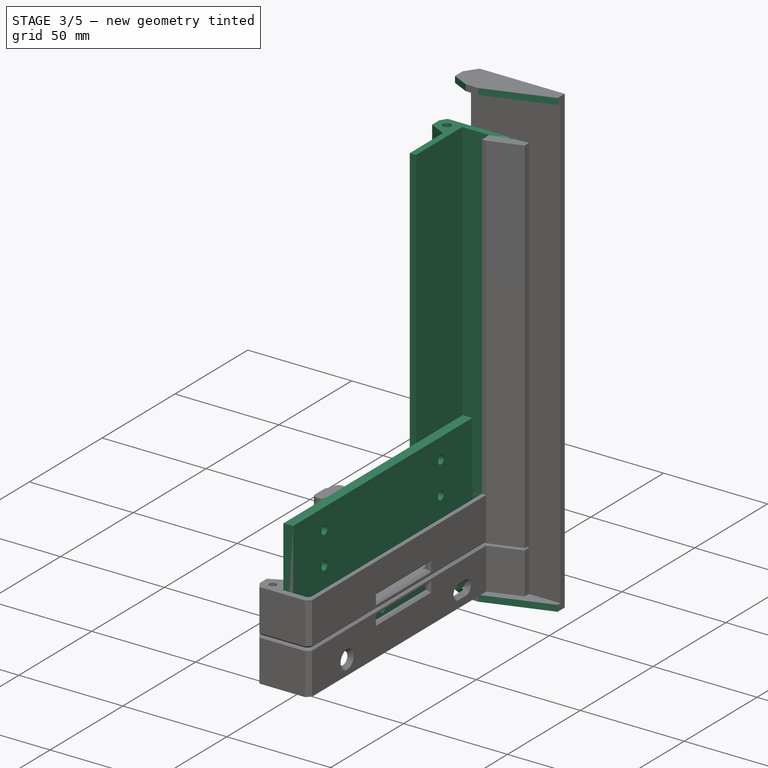
[diagram: stage 3 of 5 — iso view after this stage's code; geometry added in this stage tinted green]
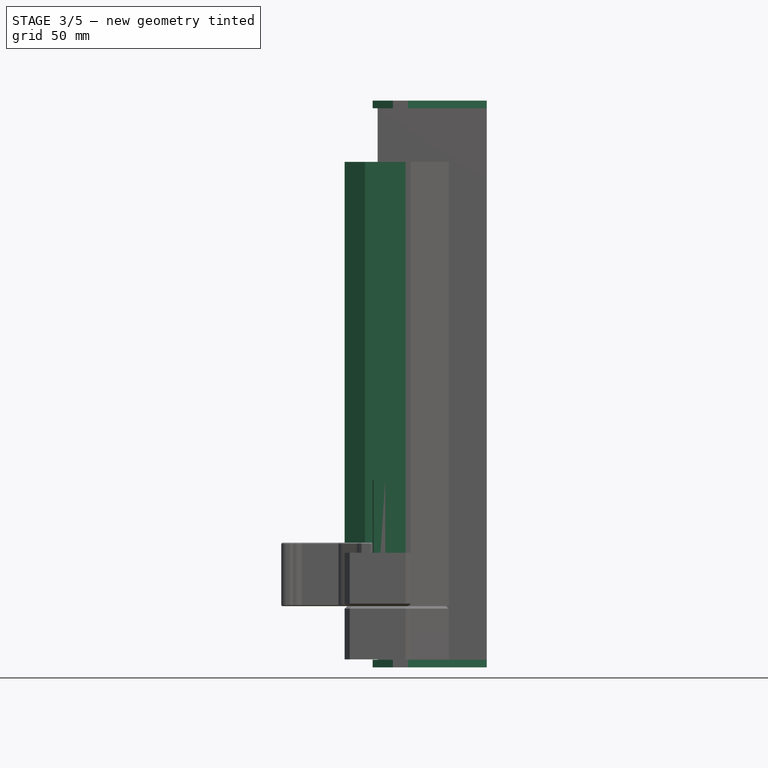
[diagram: stage 3 of 5 — front view after this stage's code; geometry added in this stage tinted green]
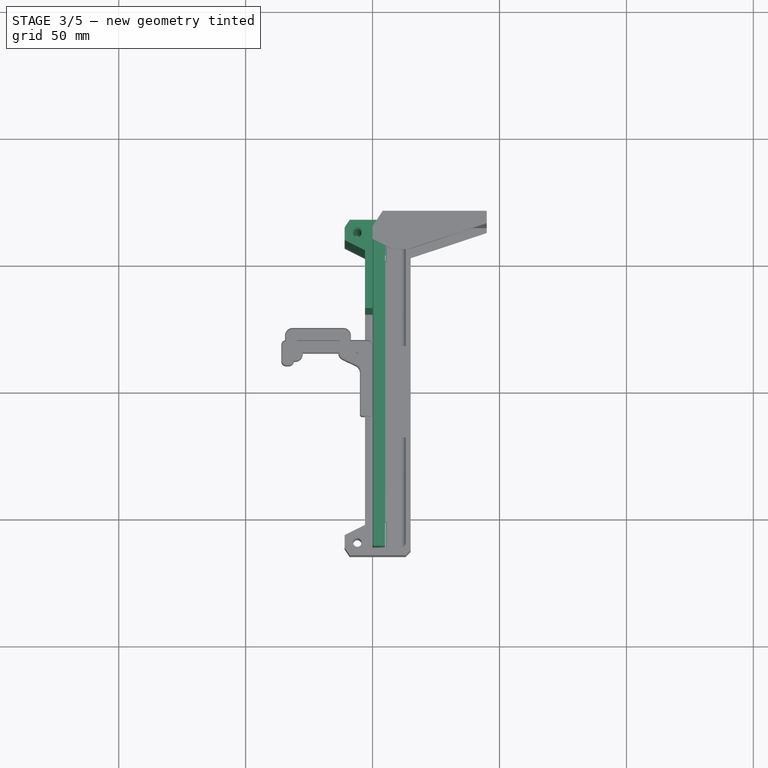
[diagram: stage 3 of 5 — top view after this stage's code; geometry added in this stage tinted green]
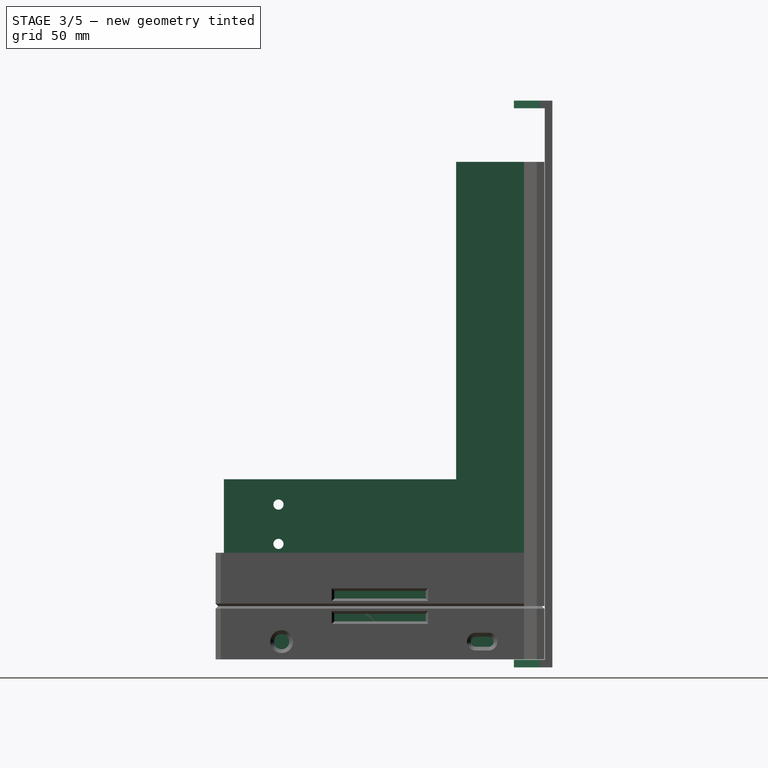
[diagram: stage 3 of 5 — right view after this stage's code; geometry added in this stage tinted green]
FEATURE [Part::Feature] Cut_cs  label="base-mid-profile"
  Placement = pos=(0,0,-5) rot=(0,0,1;0rad)
  shape: bbox 41 x 129.5 x 4e-07 mm, 0 faces, 0 solids (baked)
FEATURE [Part::Feature] Cut_cs002  label="top-profile"
  shape: bbox 41 x 34.75 x 5e-07 mm, 0 faces, 0 solids (baked)
FEATURE [Part::Extrusion] Extrude
  Base = -> Cut_cs002
  Dir = (0,0,1)
  DirMode = 2
  FaceMakerClass = Part::FaceMakerBullseye
  LengthFwd = 175
  LengthRev = 0
  Solid = true
  Symmetric = false
FEATURE [Part::Cylinder] Cylinder
  Angle = 360
  AttacherType = Attacher::AttachEngine3D
  Height = 10
  Placement = pos=(-6,59.75,0) rot=(0,0,1;0rad)
  Radius = 1.95
FEATURE [Part::Cylinder] Cylinder001
  Angle = 360
  AttacherType = Attacher::AttachEngine3D
  Height = 10
  Placement = pos=(-6,59.75,165) rot=(0,0,1;0rad)
  Radius = 1.95
FEATURE [Part::MultiFuse] Fusion
  Shapes = -> [Cylinder001,Cylinder]
FEATURE [Part::Cut] Cut
  Base = -> Extrude
  Tool = -> Fusion
FEATURE [PartDesign::Body] Body006003  label="center-back"
  Group = -> [Sketch014,Pad002,Sketch015,Pocket012]
  Origin = -> Origin006
  Placement = pos=(0,0,87.5) rot=(0,0,1;0rad)
  Tip = -> Pocket012
FEATURE [PartDesign::FeatureBase] BaseFeature003
  BaseFeature = -> Body006002
FEATURE [PartDesign::FeatureBase] BaseFeature004
  BaseFeature = -> Body006002
FEATURE [Sketcher::SketchObject] Sketch021
  FullyConstrained = true
  MapMode = 5
  Support = -> [XY_Plane009]
  sketch-geometry (12):
    g0: LineSegment StartX=0 StartY=0 StartZ=0 EndX=1.25 EndY=0 EndZ=0
    g1: LineSegment StartX=1.25 StartY=0 StartZ=0 EndX=1.25 EndY=5 EndZ=0
    g2: LineSegment StartX=1.25 StartY=5 StartZ=0 EndX=11.75 EndY=5 EndZ=0
    g3: LineSegment StartX=11.75 StartY=5 StartZ=0 EndX=11.75 EndY=0 EndZ=0
    g4: LineSegment StartX=11.75 StartY=0 StartZ=0 EndX=13 EndY=0 EndZ=0
    g5: LineSegment StartX=13 StartY=0 StartZ=0 EndX=13 EndY=-1 EndZ=0
    g6: LineSegment StartX=13 StartY=-1 StartZ=0 EndX=11 EndY=-1 EndZ=0
    g7: LineSegment StartX=11 StartY=-1 StartZ=0 EndX=11 EndY=-2 EndZ=0
    g8: LineSegment StartX=11 StartY=-2 StartZ=0 EndX=2 EndY=-2 EndZ=0
    g9: LineSegment StartX=2 StartY=-2 StartZ=0 EndX=2 EndY=-1 EndZ=0
    g10: LineSegment StartX=2 StartY=-1 StartZ=0 EndX=0 EndY=-1 EndZ=0
    g11: LineSegment StartX=0 StartY=-1 StartZ=0 EndX=0 EndY=0 EndZ=0
  constraints (35):
    c: Coincident(g-1,g0)
    c: PointOnObject(g0,g-1)
    c: Coincident(g0,g1)
    c: Vertical(g1)
    c: Coincident(g1,g2)
    c: Horizontal(g2)
    c: Coincident(g2,g3)
    c: PointOnObject(g3,g-1)
    c: Vertical(g3)
    c: Coincident(g3,g4)
    c: PointOnObject(g4,g-1)
    c: Coincident(g4,g5)
    c: Vertical(g5)
    c: Coincident(g5,g6)
    c: Horizontal(g6)
    c: Coincident(g6,g7)
    c: Vertical(g7)
    c: Coincident(g7,g8)
    c: Horizontal(g8)
    c: Coincident(g8,g9)
    c: Vertical(g9)
    c: Coincident(g9,g10)
    c: PointOnObject(g10,g-2)
    c: Horizontal(g10)
    c: Coincident(g10,g11)
    c: Coincident(g11,g0)
    c: DistanceX(g2,g2) = 10.5
    c: DistanceX(g0,g0) = 1.25
    c: DistanceX(g4,g4) = 1.25
    c: DistanceY(g11,g11) = 1
    c: DistanceY(g1,g1) = 5
    c: Horizontal(g9,g6)
    c: DistanceX(g10,g10) = 2
    c: DistanceX(g6,g6) = 2
    c: DistanceY(g9,g9) = 1
FEATURE [PartDesign::Pad] Pad003
  Direction = (1,1,1)
  Length = 2.75
  Length2 = 100
  Profile = -> Sketch021
  Type = 0
FEATURE [PartDesign::Body] Body006007  label="volume-button"
  Group = -> [Sketch022,Pad004,Chamfer016]
  Origin = -> Origin010
  Placement = pos=(10.5,63.5,121) rot=(0,-1,0;1.5708rad)
  Tip = -> Chamfer016
FEATURE [Sketcher::SketchObject] Sketch023
  ExternalGeometry = -> [BaseFeature004]
  FullyConstrained = true
  MapMode = 5
  Placement = pos=(5,-2.8e-15,0) rot=(0.57735,0.57735,0.57735;2.0944rad)
  Support = -> [BaseFeature004]
  sketch-geometry (4):
    g0: LineSegment StartX=20 StartY=7 StartZ=0 EndX=-15 EndY=7 EndZ=0
    g1: LineSegment StartX=-15 StartY=7 StartZ=0 EndX=-15 EndY=25 EndZ=0
    g2: LineSegment StartX=-15 StartY=25 StartZ=0 EndX=20 EndY=25 EndZ=0
    g3: LineSegment StartX=20 StartY=25 StartZ=0 EndX=20 EndY=7 EndZ=0
  constraints (12):
    c: Coincident(g0,g1)
    c: Coincident(g1,g2)
    c: Coincident(g2,g3)
    c: Coincident(g3,g0)
    c: Horizontal(g0)
    c: Horizontal(g2)
    c: Vertical(g1)
    c: Vertical(g3)
    c: DistanceX(g2,g2) = 35
    c: DistanceX(g0,g-3) = 41.5
    c: DistanceY(g3,g3) = 18
    c: DistanceY(g-3,g0) = 28
FEATURE [PartDesign::Pocket] Pocket017
  BaseFeature = -> BaseFeature004
  Length = 5
  Length2 = 100
  Profile = -> Sketch023
  Type = 1
FEATURE [Sketcher::SketchObject] Sketch024
  ExternalGeometry = -> [Pocket017]
  FullyConstrained = true
  MapMode = 5
  Placement = pos=(5,-2.8e-15,0) rot=(0.57735,0.57735,0.57735;2.0944rad)
  Support = -> [Pocket017]
  sketch-geometry (4):
    g0: LineSegment StartX=46.5 StartY=50 StartZ=0 EndX=58.5 EndY=50 EndZ=0
    g1: LineSegment StartX=58.5 StartY=50 StartZ=0 EndX=58.5 EndY=20 EndZ=0
    g2: LineSegment StartX=58.5 StartY=20 StartZ=0 EndX=46.5 EndY=20 EndZ=0
    g3: LineSegment StartX=46.5 StartY=20 StartZ=0 EndX=46.5 EndY=50 EndZ=0
  constraints (12):
    c: Coincident(g0,g1)
    c: Coincident(g1,g2)
    c: Coincident(g2,g3)
    c: Coincident(g3,g0)
    c: Horizontal(g0)
    c: Horizontal(g2)
    c: Vertical(g1)
    c: Vertical(g3)
    c: PointOnObject(g0,g-3)
    c: DistanceX(g0,g-3) = 3
    c: DistanceX(g0,g0) = 12
    c: DistanceY(g3,g3) = 30
FEATURE [PartDesign::Pocket] Pocket018
  BaseFeature = -> Pocket017
  Length = 2
  Length2 = 100
  Profile = -> Sketch024
  Type = 0
FEATURE [Sketcher::SketchObject] Sketch025
  ExternalGeometry = -> [Pocket018]
  FullyConstrained = true
  MapMode = 5
  Placement = pos=(5,-2.8e-15,0) rot=(0.57735,0.57735,0.57735;2.0944rad)
  Support = -> [Pocket018]
  sketch-geometry (2):
    g0: Circle CenterX=40 CenterY=24.5 CenterZ=0 NormalX=0 NormalY=0 NormalZ=1 AngleXU=0 Radius=2
    g1: Circle CenterX=-40 CenterY=24.5 CenterZ=0 NormalX=0 NormalY=0 NormalZ=1 AngleXU=0 Radius=2
  constraints (7):
    c: DistanceY(g-3,g0) = 42.35
    c: Vertical(g-4,g0)
    c: Vertical(g-5,g1)
    c: Horizontal(g1,g0)
    c: Equal(g0,g1)
    c: Radius(g-5) = 2
    c: Radius(g1) = 2
FEATURE [PartDesign::Pocket] Pocket019
  BaseFeature = -> Pocket018
  Length = 5
  Length2 = 100
  Profile = -> Sketch025
  Type = 1
FEATURE [Sketcher::SketchObject] Sketch026
  ExternalGeometry = -> [BaseFeature003]
  FullyConstrained = true
  MapMode = 5
  Placement = pos=(5,-2.8e-15,0) rot=(0.57735,0.57735,0.57735;2.0944rad)
  Support = -> [BaseFeature003]
  sketch-geometry (2):
    g0: Circle CenterX=-40 CenterY=24.5 CenterZ=0 NormalX=0 NormalY=0 NormalZ=1 AngleXU=0 Radius=2
    g1: Circle CenterX=40 CenterY=24.5 CenterZ=0 NormalX=0 NormalY=0 NormalZ=1 AngleXU=0 Radius=2
  constraints (6):
    c: Vertical(g-4,g0)
    c: Vertical(g-5,g1)
    c: Horizontal(g0,g1)
    c: Equal(g1,g0)
    c: Radius(g1) = 2
    c: DistanceY(g-3,g0) = 42.35
FEATURE [PartDesign::Pocket] Pocket020
  BaseFeature = -> BaseFeature003
  Length = 5
  Length2 = 100
  Profile = -> Sketch026
  Type = 1
FEATURE [PartDesign::Body] Body004  label="top"
  BaseFeature = -> Chamfer006
  Group = -> [BaseFeature001,Fillet001,Sketch008,Pocket007,Sketch009,Pocket008,Chamfer007,Fillet002,Sketch010,Pocket009,Chamfer008,Sketch017,Pocket014,Fillet003,Chamfer014,Sketch018,Pocket015,Sketch028,Pocket022,Chamfer011003]
  Origin = -> Origin003
  Tip = -> Chamfer011003
FEATURE [PartDesign::Chamfer] Chamfer011004
  Angle = 45
  Base = -> Pocket020 [Face4]
  BaseFeature = -> Pocket020
  ChamferType = 0
  FlipDirection = false
  Size = 0.4
  Size2 = 1
  SupportTransform = false
FEATURE [PartDesign::Body] Body006004  label="side-back-right"
  BaseFeature = -> Body006002
  Group = -> [BaseFeature003,Sketch026,Pocket020,Chamfer011004]
  Origin = -> Origin007
  Tip = -> Chamfer011004
FEATURE [PartDesign::Chamfer] Chamfer011005
  Angle = 45
  Base = -> Pocket019 [Face4]
  BaseFeature = -> Pocket019
  ChamferType = 0
  FlipDirection = false
  Size = 0.4
  Size2 = 1
  SupportTransform = false
FEATURE [PartDesign::Body] Body006005  label="side-back-left"
  BaseFeature = -> Body006002
  Group = -> [BaseFeature004,Sketch023,Pocket017,Sketch024,Pocket018,Sketch025,Pocket019,Chamfer011005]
  Origin = -> Origin008
  Placement = pos=(0,2.1e-14,175) rot=(1,0,0;3.14159rad)
  Tip = -> Chamfer011005
FEATURE [PartDesign::Chamfer] Chamfer011006
  Angle = 45
  Base = -> Pad003 [Face3,Edge12,Edge35,Edge6,Edge18,Edge30,Edge24,Edge31,Edge36,Edge7,Edge13,Edge19,Edge25]
  BaseFeature = -> Pad003
  ChamferType = 0
  FlipDirection = false
  Size = 0.4
  Size2 = 1
  SupportTransform = false
FEATURE [Sketcher::SketchObject] Sketch030
  ExternalGeometry = -> [Pad005]
  FullyConstrained = true
  MapMode = 5
  Placement = pos=(-5.58e-14,8.76e-14,199.15) rot=(0,0,-1;1.5708rad)
  Support = -> [Pad005]
  sketch-geometry (10):
    g0: LineSegment StartX=-67.9 StartY=4 StartZ=0 EndX=-61.9 EndY=-3.33e-14 EndZ=0
    g1: LineSegment StartX=-61.9 StartY=-3.33e-14 StartZ=0 EndX=-67.9 EndY=-3.32e-14 EndZ=0
    g2: LineSegment StartX=-67.9 StartY=-3.32e-14 StartZ=0 EndX=-67.9 EndY=4 EndZ=0
    g3: LineSegment StartX=-52.75 StartY=8 StartZ=0 EndX=-56.75 EndY=-3.29e-14 EndZ=0
    g4: LineSegment StartX=-56.75 StartY=-3.29e-14 StartZ=0 EndX=-52.75 EndY=8.775e-13 EndZ=0
    g5: LineSegment StartX=-52.75 StartY=8.775e-13 StartZ=0 EndX=-52.75 EndY=8 EndZ=0
    g6: LineSegment StartX=-52.75 StartY=14 StartZ=0 EndX=-52.75 EndY=45 EndZ=0
    g7: LineSegment StartX=-52.75 StartY=45 StartZ=0 EndX=-63 EndY=45 EndZ=0
    g8: LineSegment StartX=-52.75 StartY=14 StartZ=0 EndX=-52.75 EndY=14 EndZ=0
    g9: LineSegment StartX=-52.75 StartY=14 StartZ=0 EndX=-63 EndY=45 EndZ=0
  constraints (27):
    c: PointOnObject(g0,g-3)
    c: PointOnObject(g0,g-4)
    c: Coincident(g0,g1)
    c: Coincident(g1,g-4)
    c: Coincident(g1,g2)
    c: Coincident(g2,g0)
    c: DistanceX(g1,g1) = 6
    c: DistanceY(g2,g2) = 4
    c: PointOnObject(g3,g-5)
    c: PointOnObject(g3,g-4)
    c: Coincident(g3,g4)
    c: Coincident(g4,g-5)
    c: Coincident(g4,g5)
    c: Coincident(g5,g3)
    c: DistanceX(g4,g4) = 4
    c: DistanceY(g5,g5) = 8
    c: PointOnObject(g7,g-6)
    c: PointOnObject(g6,g-5)
    c: Coincident(g6,g-6)
    c: Coincident(g6,g7)
    c: DistanceX(g7,g7) = 10.25
    c: DistanceY(g3,g6) = 6
    c: Coincident(g6,g8)
    c: Horizontal(g8)
    c: Coincident(g8,g9)
    c: Coincident(g9,g7)
    c: DistanceX(g8,g8) = 0
FEATURE [PartDesign::Pocket] Pocket023
  BaseFeature = -> Pad005
  Length = 5
  Length2 = 100
  Placement = pos=(0,0,0) rot=(0.57735,0.57735,0.57735;2.0944rad)
  Profile = -> Sketch030
  Type = 1
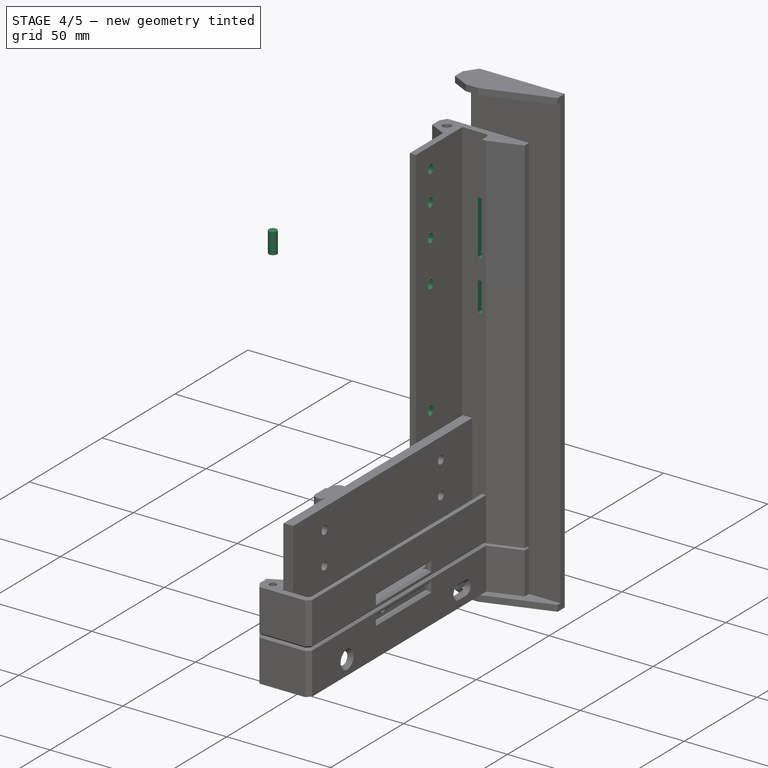
[diagram: stage 4 of 5 — iso view after this stage's code; geometry added in this stage tinted green]
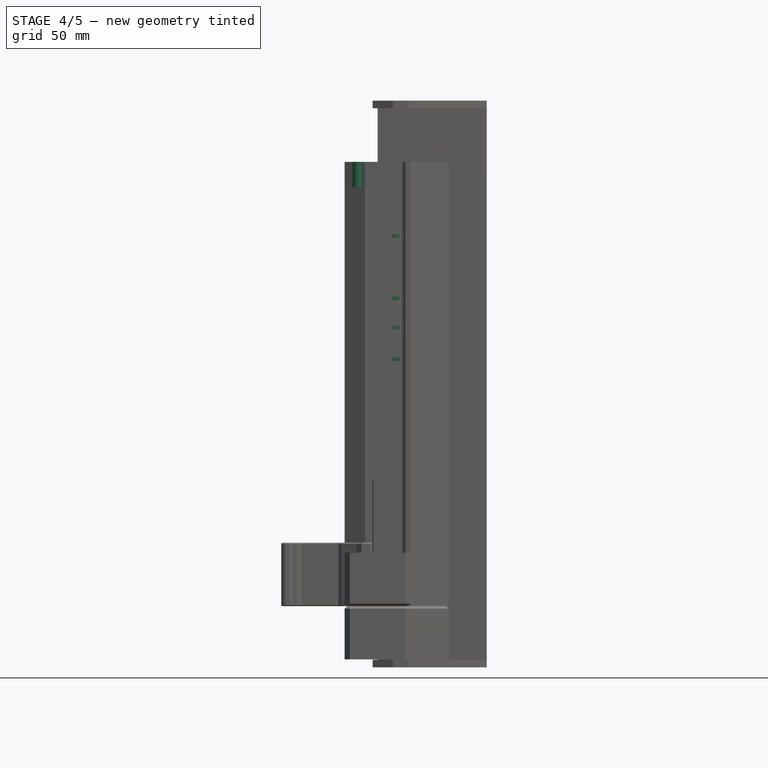
[diagram: stage 4 of 5 — front view after this stage's code; geometry added in this stage tinted green]
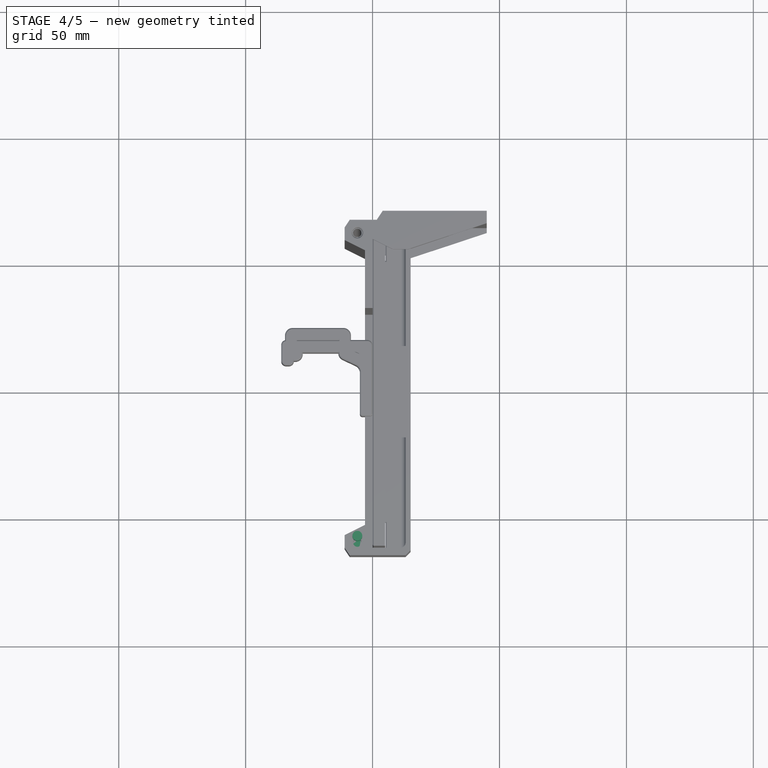
[diagram: stage 4 of 5 — top view after this stage's code; geometry added in this stage tinted green]
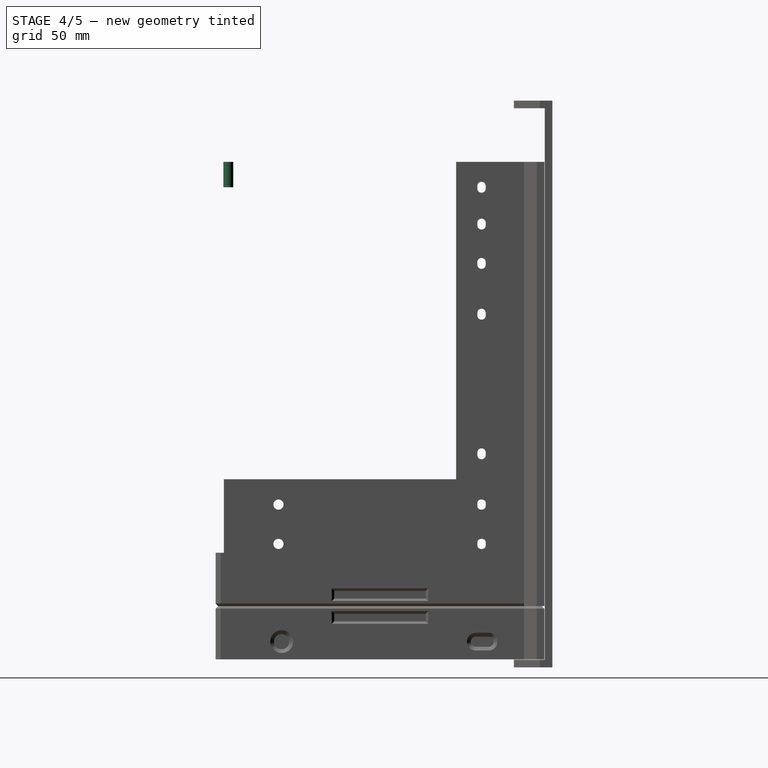
[diagram: stage 4 of 5 — right view after this stage's code; geometry added in this stage tinted green]
FEATURE [Part::Chamfer] Chamfer006  label="top-part"
  Base = -> Cut
  Edges = 2 edges r=0.4: [Edge22,Edge34]
FEATURE [PartDesign::FeatureBase] BaseFeature001
  BaseFeature = -> Chamfer006
FEATURE [PartDesign::Fillet] Fillet001
  Base = -> BaseFeature001 [Edge27]
  BaseFeature = -> BaseFeature001
  Radius = 2
  Refine = true
  SupportTransform = false
FEATURE [Sketcher::SketchObject] Sketch008
  FullyConstrained = true
  MapMode = 5
  Placement = pos=(0,56.75,0) rot=(1,0,0;1.5708rad)
  Support = -> [Fillet001]
  sketch-geometry (4):
    g0: LineSegment StartX=30 StartY=13 StartZ=0 EndX=15 EndY=20 EndZ=0
    g1: LineSegment StartX=15 StartY=20 StartZ=0 EndX=15 EndY=155 EndZ=0
    g2: LineSegment StartX=15 StartY=155 StartZ=0 EndX=30 EndY=162 EndZ=0
    g3: LineSegment StartX=30 StartY=162 StartZ=0 EndX=30 EndY=13 EndZ=0
  constraints (12):
    c: Coincident(g0,g1)
    c: Vertical(g1)
    c: Coincident(g1,g2)
    c: Coincident(g2,g3)
    c: Coincident(g3,g0)
    c: Vertical(g3)
    c: DistanceX(g0,g0) = 15
    c: DistanceX(g-1,g0) = 15
    c: DistanceY(g-1,g0) = 20
    c: DistanceY(g0,g0) = 7
    c: DistanceY(g1,g2) = 7
    c: DistanceY(g1,g1) = 135
FEATURE [PartDesign::Pocket] Pocket007
  BaseFeature = -> Fillet001
  Length = 5
  Length2 = 100
  Profile = -> Sketch008
  Type = 1
FEATURE [Sketcher::SketchObject] Sketch009
  FullyConstrained = true
  MapMode = 5
  Placement = pos=(0,64.75,0) rot=(0,0.707107,0.707107;3.14159rad)
  Support = -> [Pocket007]
  sketch-geometry (2):
    g0: Circle CenterX=-22 CenterY=8 CenterZ=0 NormalX=0 NormalY=0 NormalZ=1 AngleXU=0 Radius=1.95
    g1: Circle CenterX=-22 CenterY=167 CenterZ=0 NormalX=0 NormalY=0 NormalZ=1 AngleXU=0 Radius=1.95
  constraints (6):
    c: Vertical(g1,g0)
    c: DistanceX(g0,g-1) = 22
    c: Radius(g0) = 1.95
    c: Radius(g1) = 1.95
    c: DistanceY(g-1,g0) = 8
    c: DistanceY(g0,g1) = 159
FEATURE [PartDesign::Pocket] Pocket008
  BaseFeature = -> Pocket007
  Length = 4
  Length2 = 100
  Profile = -> Sketch009
  Type = 0
FEATURE [PartDesign::Chamfer] Chamfer007
  Angle = 45
  Base = -> Pocket008 [Edge42,Edge43]
  BaseFeature = -> Pocket008
  ChamferType = 0
  FlipDirection = false
  Size = 0.4
  Size2 = 1
  SupportTransform = false
FEATURE [PartDesign::Fillet] Fillet002
  Base = -> Chamfer007 [Edge44,Edge29,Edge43,Edge47]
  BaseFeature = -> Chamfer007
  Radius = 2
  SupportTransform = false
FEATURE [Sketcher::SketchObject] Sketch010
  FullyConstrained = true
  MapMode = 5
  Placement = pos=(-3,0,0) rot=(0.57735,-0.57735,-0.57735;2.0944rad)
  Support = -> [Fillet002]
  sketch-geometry (25):
    g0: LineSegment StartX=-40 StartY=175 StartZ=0 EndX=-40 EndY=0 EndZ=0
    g1: ArcOfCircle CenterX=-40 CenterY=9.5 CenterZ=0 NormalX=0 NormalY=0 NormalZ=1 AngleXU=0 Radius=1.65 StartAngle=3.14159 EndAngle=6.28319
    g2: ArcOfCircle CenterX=-40 CenterY=10.5 CenterZ=0 NormalX=0 NormalY=0 NormalZ=1 AngleXU=0 Radius=1.65 StartAngle=0 EndAngle=3.14159
    g3: LineSegment StartX=-38.35 StartY=9.5 StartZ=0 EndX=-38.35 EndY=10.5 EndZ=0
    g4: LineSegment StartX=-41.65 StartY=9.5 StartZ=0 EndX=-41.65 EndY=10.5 EndZ=0
    g5: ArcOfCircle CenterX=-40 CenterY=165.5 CenterZ=0 NormalX=0 NormalY=0 NormalZ=1 AngleXU=0 Radius=1.65 StartAngle=0 EndAngle=3.14159
    g6: ArcOfCircle CenterX=-40 CenterY=164.5 CenterZ=0 NormalX=0 NormalY=0 NormalZ=1 AngleXU=0 Radius=1.65 StartAngle=3.14159 EndAngle=6.28319
    g7: LineSegment StartX=-41.65 StartY=165.5 StartZ=0 EndX=-41.65 EndY=164.5 EndZ=0
    g8: LineSegment StartX=-38.35 StartY=165.5 StartZ=0 EndX=-38.35 EndY=164.5 EndZ=0
    g9: ArcOfCircle CenterX=-40 CenterY=135.5 CenterZ=0 NormalX=0 NormalY=0 NormalZ=1 AngleXU=0 Radius=1.65 StartAngle=6e-15 EndAngle=3.14159
    g10: ArcOfCircle CenterX=-40 CenterY=134.5 CenterZ=0 NormalX=0 NormalY=0 NormalZ=1 AngleXU=0 Radius=1.65 StartAngle=3.14159 EndAngle=6.28319
    g11: LineSegment StartX=-41.65 StartY=135.5 StartZ=0 EndX=-41.65 EndY=134.5 EndZ=0
    g12: LineSegment StartX=-38.35 StartY=135.5 StartZ=0 EndX=-38.35 EndY=134.5 EndZ=0
    g13: ArcOfCircle CenterX=-40 CenterY=39.5 CenterZ=0 NormalX=0 NormalY=0 NormalZ=1 AngleXU=0 Radius=1.65 StartAngle=3.14159 EndAngle=6.28319
    g14: ArcOfCircle CenterX=-40 CenterY=40.5 CenterZ=0 NormalX=0 NormalY=0 NormalZ=1 AngleXU=0 Radius=1.65 StartAngle=1.1e-15 EndAngle=3.14159
    g15: LineSegment StartX=-38.35 StartY=39.5 StartZ=0 EndX=-38.35 EndY=40.5 EndZ=0
    g16: LineSegment StartX=-41.65 StartY=39.5 StartZ=0 EndX=-41.65 EndY=40.5 EndZ=0
    g17: ArcOfCircle CenterX=-40 CenterY=59.5 CenterZ=0 NormalX=0 NormalY=0 NormalZ=1 AngleXU=0 Radius=1.65 StartAngle=3.14159 EndAngle=6.28319
    g18: ArcOfCircle CenterX=-40 CenterY=60.5 CenterZ=0 NormalX=0 NormalY=0 NormalZ=1 AngleXU=0 Radius=1.65 StartAngle=-9e-16 EndAngle=3.14159
    g19: LineSegment StartX=-38.35 StartY=59.5 StartZ=0 EndX=-38.35 EndY=60.5 EndZ=0
    g20: LineSegment StartX=-41.65 StartY=59.5 StartZ=0 EndX=-41.65 EndY=60.5 EndZ=0
    g21: ArcOfCircle CenterX=-40 CenterY=115.5 CenterZ=0 NormalX=0 NormalY=0 NormalZ=1 AngleXU=0 Radius=1.65 StartAngle=-1.8e-15 EndAngle=3.14159
    g22: ArcOfCircle CenterX=-40 CenterY=114.5 CenterZ=0 NormalX=0 NormalY=0 NormalZ=1 AngleXU=0 Radius=1.65 StartAngle=3.14159 EndAngle=6.28319
    g23: LineSegment StartX=-41.65 StartY=115.5 StartZ=0 EndX=-41.65 EndY=114.5 EndZ=0
    g24: LineSegment StartX=-38.35 StartY=115.5 StartZ=0 EndX=-38.35 EndY=114.5 EndZ=0
  constraints (64):
    c: Vertical(g0)
    c: DistanceX(g0,g-1) = 40
    c: DistanceY(g-1,g0) = 0
    c: DistanceY(g0,g0) = 175
    c: Tangent(g1,g4) = 1.5708
    c: Tangent(g1,g3) = -1.5708
    c: Tangent(g3,g2) = -1.5708
    c: Tangent(g4,g2) = 1.5708
    c: Vertical(g3)
    c: Equal(g1,g2)
    c: PointOnObject(g1,g0)
    c: Tangent(g5,g8) = 1.5708
    c: Tangent(g5,g7) = -1.5708
    c: Tangent(g7,g6) = -1.5708
    c: Tangent(g8,g6) = 1.5708
    c: Vertical(g7)
    c: Equal(g5,g6)
    c: PointOnObject(g5,g0)
    c: Tangent(g9,g12) = 1.5708
    c: Tangent(g9,g11) = -1.5708
    c: Tangent(g11,g10) = -1.5708
    c: Tangent(g12,g10) = 1.5708
    c: Vertical(g11)
    c: Equal(g9,g10)
    c: PointOnObject(g9,g0)
    c: Tangent(g13,g16) = 1.5708
    c: Tangent(g13,g15) = -1.5708
    c: Tangent(g15,g14) = -1.5708
    c: Tangent(g16,g14) = 1.5708
    c: Vertical(g15)
    c: Equal(g13,g14)
    c: PointOnObject(g13,g0)
    c: Tangent(g17,g20) = 1.5708
    c: Tangent(g17,g19) = -1.5708
    c: Tangent(g19,g18) = -1.5708
    c: Tangent(g20,g18) = 1.5708
    c: Vertical(g19)
    c: Equal(g17,g18)
    c: PointOnObject(g17,g0)
    c: Tangent(g21,g24) = 1.5708
    c: Tangent(g21,g23) = -1.5708
    c: Tangent(g23,g22) = -1.5708
    c: Tangent(g24,g22) = 1.5708
    c: Vertical(g23)
    c: Equal(g21,g22)
    c: PointOnObject(g21,g0)
    c: Vertical(g2,g14)
    c: Vertical(g14,g18)
    c: Vertical(g18,g21)
    c: Vertical(g21,g9)
    c: Vertical(g9,g5)
    c: Radius(g5) = 1.65
    c: DistanceY(g6,g5) = 1
    c: DistanceY(g3,g3) = 1
    c: DistanceY(g0,g1) = 9.5
    c: DistanceY(g5,g0) = 9.5
    c: DistanceY(g12,g12) = 1
    c: DistanceY(g24,g24) = 1
    c: DistanceY(g15,g15) = 1
    c: DistanceY(g19,g19) = 1
    c: DistanceY(g2,g13) = 29
    c: DistanceY(g9,g6) = 29
    c: DistanceY(g14,g17) = 19
    c: DistanceY(g21,g10) = 19
FEATURE [PartDesign::Pocket] Pocket009
  BaseFeature = -> Fillet002
  Length = 5
  Length2 = 100
  Profile = -> Sketch010
  Type = 1
FEATURE [PartDesign::Chamfer] Chamfer008
  Angle = 45
  Base = -> Pocket009 [Edge101,Edge105,Edge109,Edge111,Edge115,Edge119]
  BaseFeature = -> Pocket009
  ChamferType = 0
  FlipDirection = false
  Size = 0.4
  Size2 = 1
  SupportTransform = false
FEATURE [Part::Cylinder] Cylinder002
  Angle = 360
  AttacherType = Attacher::AttachEngine3D
  Height = 10
  Placement = pos=(-6,-59.75,0) rot=(0,0,1;0rad)
  Radius = 1.95
FEATURE [Part::Cylinder] Cylinder003
  Angle = 360
  AttacherType = Attacher::AttachEngine3D
  Height = 10
  Placement = pos=(-6,-59.75,165) rot=(0,0,1;0rad)
  Radius = 1.95
FEATURE [Sketcher::SketchObject] Sketch017
  ExternalGeometry = -> [Chamfer008]
  FullyConstrained = true
  MapMode = 5
  Placement = pos=(0,61.75,0) rot=(1,0,0;1.5708rad)
  Support = -> [Chamfer008]
  sketch-geometry (8):
    g0: LineSegment StartX=7.5 StartY=145 StartZ=0 EndX=10.5 EndY=145 EndZ=0
    g1: LineSegment StartX=10.5 StartY=145 StartZ=0 EndX=10.5 EndY=122 EndZ=0
    g2: LineSegment StartX=10.5 StartY=122 StartZ=0 EndX=7.5 EndY=122 EndZ=0
    g3: LineSegment StartX=7.5 StartY=122 StartZ=0 EndX=7.5 EndY=145 EndZ=0
    g4: LineSegment StartX=7.5 StartY=109 StartZ=0 EndX=10.5 EndY=109 EndZ=0
    g5: LineSegment StartX=10.5 StartY=109 StartZ=0 EndX=10.5 EndY=98 EndZ=0
    g6: LineSegment StartX=10.5 StartY=98 StartZ=0 EndX=7.5 EndY=98 EndZ=0
    g7: LineSegment StartX=7.5 StartY=98 StartZ=0 EndX=7.5 EndY=109 EndZ=0
  constraints (24):
    c: Coincident(g0,g1)
    c: Coincident(g1,g2)
    c: Coincident(g2,g3)
    c: Coincident(g3,g0)
    c: Horizontal(g0)
    c: Horizontal(g2)
    c: Vertical(g1)
    c: Vertical(g3)
    c: Coincident(g4,g5)
    c: Coincident(g5,g6)
    c: Coincident(g6,g7)
    c: Coincident(g7,g4)
    c: Horizontal(g4)
    c: Horizontal(g6)
    c: Vertical(g5)
    c: Vertical(g7)
    c: Vertical(g4,g2)
    c: Vertical(g1,g4)
    c: DistanceX(g0,g0) = 3
    c: DistanceX(g0,g-3) = 2.5
    c: DistanceY(g0,g-3) = 30
    c: DistanceY(g4,g-3) = 66
    c: DistanceY(g5,g5) = 11
    c: DistanceY(g3,g3) = 23
FEATURE [PartDesign::Pocket] Pocket014
  BaseFeature = -> Chamfer008
  Length = 5
  Length2 = 100
  Profile = -> Sketch017
  Type = 1
FEATURE [PartDesign::Fillet] Fillet003
  Base = -> Pocket014 [Edge207,Edge208,Edge206,Edge205,Edge210,Edge211,Edge209,Edge212]
  BaseFeature = -> Pocket014
  Radius = 0.4
  SupportTransform = false
FEATURE [PartDesign::Chamfer] Chamfer014
  Angle = 45
  Base = -> Fillet003 [Edge29,Edge91]
  BaseFeature = -> Fillet003
  ChamferType = 0
  FlipDirection = false
  Size = 0.4
  Size2 = 1
  SupportTransform = false
FEATURE [Sketcher::SketchObject] Sketch018
  ExternalGeometry = -> [Chamfer014]
  FullyConstrained = true
  MapMode = 5
  Placement = pos=(0,61.75,0) rot=(1,0,0;1.5708rad)
  Support = -> [Chamfer014]
  sketch-geometry (8):
    g0: LineSegment StartX=7.5 StartY=146.5 StartZ=0 EndX=10.5 EndY=146.5 EndZ=0
    g1: LineSegment StartX=10.5 StartY=146.5 StartZ=0 EndX=10.5 EndY=120.5 EndZ=0
    g2: LineSegment StartX=10.5 StartY=120.5 StartZ=0 EndX=7.5 EndY=120.5 EndZ=0
    g3: LineSegment StartX=7.5 StartY=120.5 StartZ=0 EndX=7.5 EndY=146.5 EndZ=0
    g4: LineSegment StartX=7.5 StartY=110.5 StartZ=0 EndX=10.5 EndY=110.5 EndZ=0
    g5: LineSegment StartX=10.5 StartY=110.5 StartZ=0 EndX=10.5 EndY=96.5 EndZ=0
    g6: LineSegment StartX=10.5 StartY=96.5 StartZ=0 EndX=7.5 EndY=96.5 EndZ=0
    g7: LineSegment StartX=7.5 StartY=96.5 StartZ=0 EndX=7.5 EndY=110.5 EndZ=0
  constraints (25):
    c: Coincident(g0,g1)
    c: Coincident(g1,g2)
    c: Coincident(g2,g3)
    c: Coincident(g3,g0)
    c: Horizontal(g0)
    c: Horizontal(g2)
    c: Vertical(g1)
    c: Vertical(g3)
    c: Coincident(g4,g5)
    c: Coincident(g5,g6)
    c: Coincident(g6,g7)
    c: Coincident(g7,g4)
    c: Horizontal(g4)
    c: Horizontal(g6)
    c: Vertical(g5)
    c: Vertical(g7)
    c: Vertical(g2,g4)
    c: Vertical(g1,g4)
    c: DistanceX(g0,g0) = 3
    c: DistanceX(g0,g-3) = 2.5
    c: DistanceY(g-3,g-3) = 175
    c: DistanceY(g0,g-3) = 28.5
    c: DistanceY(g3,g3) = 26
    c: DistanceY(g7,g7) = 14
    c: DistanceY(g4,g-3) = 64.5
FEATURE [PartDesign::Pocket] Pocket015
  BaseFeature = -> Chamfer014
  Length = 2
  Length2 = 100
  Profile = -> Sketch018
  Type = 0
FEATURE [PartDesign::Body] Body005  label="bottom"
  BaseFeature = -> Chamfer009
  Group = -> [BaseFeature002,Sketch011,Pocket010,Chamfer010,Sketch019,Pocket016,Fillet004,Sketch027,Pocket021,Chamfer011002]
  Origin = -> Origin004
  Tip = -> Chamfer011002
FEATURE [Sketcher::SketchObject] Sketch028
  ExternalGeometry = -> [Pocket015]
  FullyConstrained = true
  MapMode = 5
  Placement = pos=(-3,0,0) rot=(0.57735,-0.57735,-0.57735;2.0944rad)
  Support = -> [Pocket015]
  sketch-geometry (8):
    g0: ArcOfCircle CenterX=-40 CenterY=150 CenterZ=0 NormalX=0 NormalY=0 NormalZ=1 AngleXU=0 Radius=1.65 StartAngle=3.14159 EndAngle=6.28319
    g1: ArcOfCircle CenterX=-40 CenterY=151 CenterZ=0 NormalX=0 NormalY=0 NormalZ=1 AngleXU=0 Radius=1.65 StartAngle=1.2e-15 EndAngle=3.14159
    g2: LineSegment StartX=-38.35 StartY=150 StartZ=0 EndX=-38.35 EndY=151 EndZ=0
    g3: LineSegment StartX=-41.65 StartY=150 StartZ=0 EndX=-41.65 EndY=151 EndZ=0
    g4: ArcOfCircle CenterX=-40 CenterY=24 CenterZ=0 NormalX=0 NormalY=0 NormalZ=1 AngleXU=0 Radius=1.65 StartAngle=3.14159 EndAngle=6.28319
    g5: ArcOfCircle CenterX=-40 CenterY=25 CenterZ=0 NormalX=0 NormalY=0 NormalZ=1 AngleXU=0 Radius=1.65 StartAngle=-9e-16 EndAngle=3.14159
    g6: LineSegment StartX=-38.35 StartY=24 StartZ=0 EndX=-38.35 EndY=25 EndZ=0
    g7: LineSegment StartX=-41.65 StartY=24 StartZ=0 EndX=-41.65 EndY=25 EndZ=0
  constraints (20):
    c: Tangent(g0,g3) = 1.5708
    c: Tangent(g0,g2) = -1.5708
    c: Tangent(g2,g1) = -1.5708
    c: Tangent(g3,g1) = 1.5708
    c: Vertical(g2)
    c: Equal(g0,g1)
    c: Tangent(g4,g7) = 1.5708
    c: Tangent(g4,g6) = -1.5708
    c: Tangent(g6,g5) = -1.5708
    c: Tangent(g7,g5) = 1.5708
    c: Vertical(g6)
    c: Equal(g4,g5)
    c: Vertical(g5,g-3)
    c: Vertical(g-3,g0)
    c: Equal(g1,g5)
    c: Radius(g5) = 1.65
    c: DistanceY(g-5,g4) = 24
    c: DistanceY(g4,g5) = 1
    c: DistanceY(g1,g-4) = 24
    c: DistanceY(g0,g1) = 1
FEATURE [PartDesign::Pocket] Pocket022
  BaseFeature = -> Pocket015
  Length = 5
  Length2 = 100
  Profile = -> Sketch028
  Type = 1
FEATURE [PartDesign::Chamfer] Chamfer011003
  Angle = 45
  Base = -> Pocket022 [Edge167,Edge147]
  BaseFeature = -> Pocket022
  ChamferType = 0
  FlipDirection = false
  Size = 0.4
  Size2 = 1
  SupportTransform = false
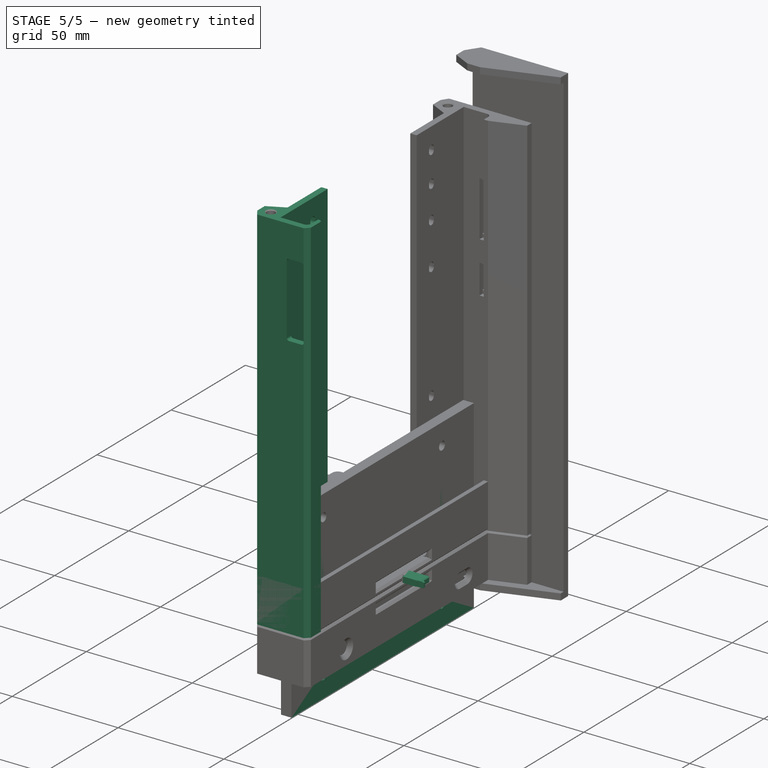
[diagram: stage 5 of 5 — iso view after this stage's code; geometry added in this stage tinted green]
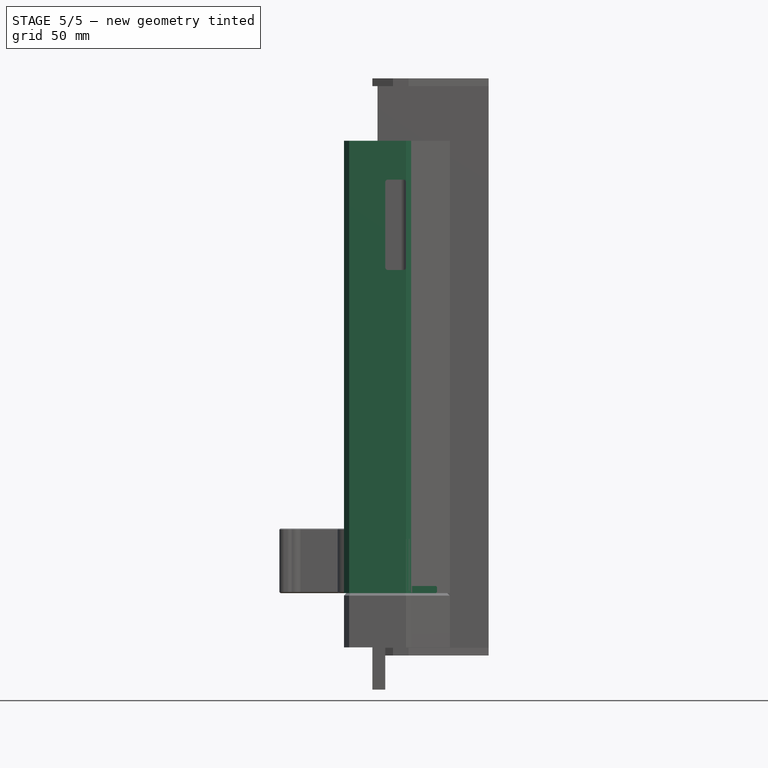
[diagram: stage 5 of 5 — front view after this stage's code; geometry added in this stage tinted green]
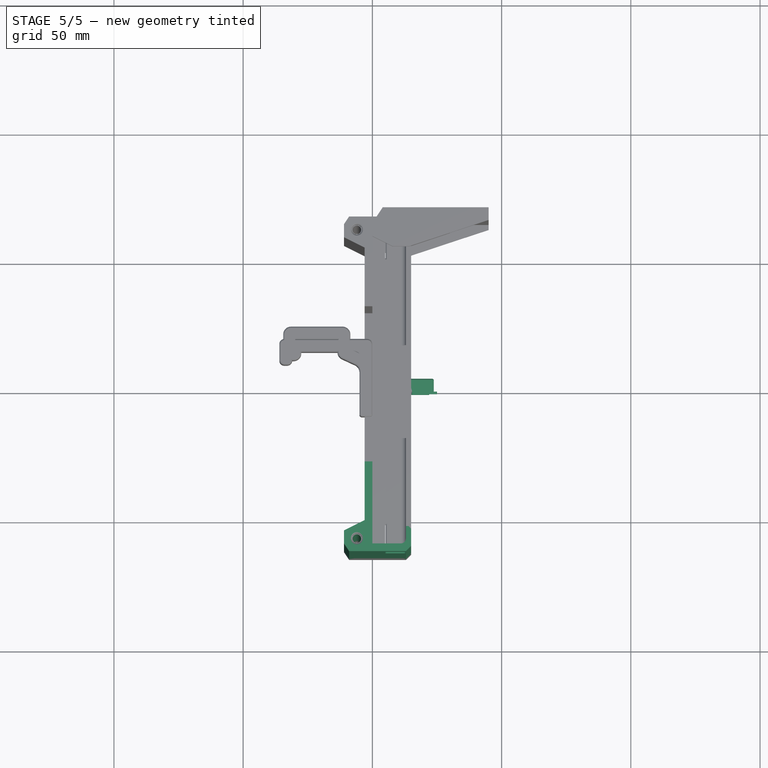
[diagram: stage 5 of 5 — top view after this stage's code; geometry added in this stage tinted green]
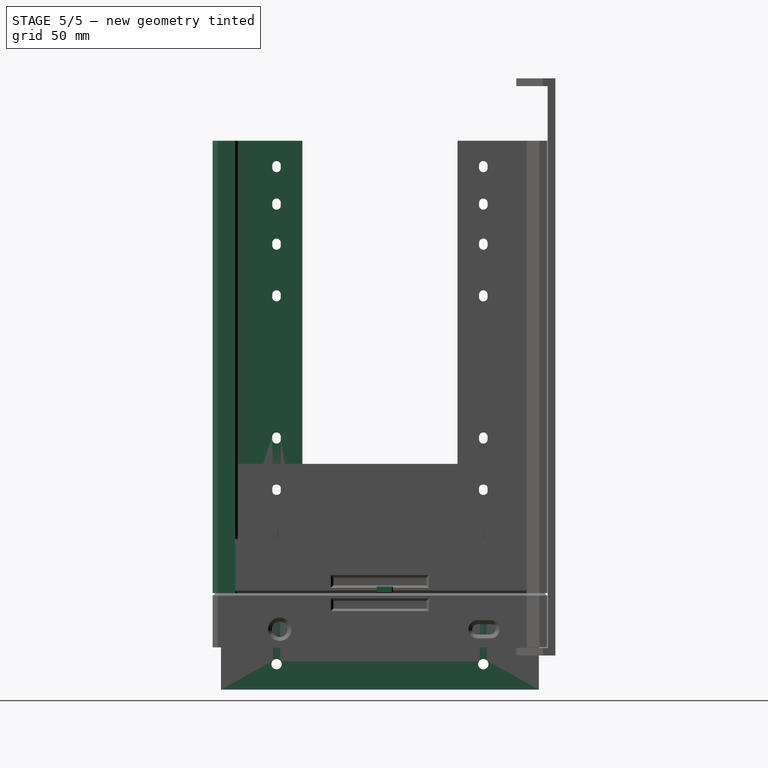
[diagram: stage 5 of 5 — right view after this stage's code; geometry added in this stage tinted green]
FEATURE [Part::Feature] Chamfer009_cs
  shape: bbox 26 x 34.75 x 6e-07 mm, 0 faces, 0 solids (baked)
FEATURE [Part::Extrusion] Extrude001
  Base = -> Chamfer009_cs
  Dir = (0,0,1)
  DirMode = 2
  FaceMakerClass = Part::FaceMakerBullseye
  LengthFwd = 175
  LengthRev = 0
  Solid = true
  Symmetric = false
FEATURE [Part::MultiFuse] Fusion001
  Shapes = -> [Cylinder003,Cylinder002]
FEATURE [Part::Cut] Cut001
  Base = -> Extrude001
  Tool = -> Fusion001
FEATURE [Part::Chamfer] Chamfer009  label="bottom-part"
  Base = -> Cut001
  Edges = 2 edges r=0.4: [Edge22,Edge34]
FEATURE [PartDesign::FeatureBase] BaseFeature002
  BaseFeature = -> Chamfer009
FEATURE [Sketcher::SketchObject] Sketch011
  FullyConstrained = true
  MapMode = 5
  Placement = pos=(-3,0,0) rot=(0.57735,-0.57735,-0.57735;2.0944rad)
  Support = -> [BaseFeature002]
  sketch-geometry (25):
    g0: LineSegment StartX=40 StartY=0 StartZ=0 EndX=40 EndY=175 EndZ=0
    g1: ArcOfCircle CenterX=40 CenterY=9.5 CenterZ=0 NormalX=0 NormalY=0 NormalZ=1 AngleXU=0 Radius=1.65 StartAngle=3.14159 EndAngle=6.28319
    g2: ArcOfCircle CenterX=40 CenterY=10.5 CenterZ=0 NormalX=0 NormalY=0 NormalZ=1 AngleXU=0 Radius=1.65 StartAngle=2e-16 EndAngle=3.14159
    g3: LineSegment StartX=41.65 StartY=9.5 StartZ=0 EndX=41.65 EndY=10.5 EndZ=0
    g4: LineSegment StartX=38.35 StartY=9.5 StartZ=0 EndX=38.35 EndY=10.5 EndZ=0
    g5: ArcOfCircle CenterX=40 CenterY=39.5 CenterZ=0 NormalX=0 NormalY=0 NormalZ=1 AngleXU=0 Radius=1.65 StartAngle=3.14159 EndAngle=6.28319
    g6: ArcOfCircle CenterX=40 CenterY=40.5 CenterZ=0 NormalX=0 NormalY=0 NormalZ=1 AngleXU=0 Radius=1.65 StartAngle=6e-16 EndAngle=3.14159
    g7: LineSegment StartX=41.65 StartY=39.5 StartZ=0 EndX=41.65 EndY=40.5 EndZ=0
    g8: LineSegment StartX=38.35 StartY=39.5 StartZ=0 EndX=38.35 EndY=40.5 EndZ=0
    g9: ArcOfCircle CenterX=40 CenterY=59.5 CenterZ=0 NormalX=0 NormalY=0 NormalZ=1 AngleXU=0 Radius=1.65 StartAngle=3.14159 EndAngle=6.28319
    g10: ArcOfCircle CenterX=40 CenterY=60.5 CenterZ=0 NormalX=0 NormalY=0 NormalZ=1 AngleXU=0 Radius=1.65 StartAngle=4e-16 EndAngle=3.14159
    g11: LineSegment StartX=41.65 StartY=59.5 StartZ=0 EndX=41.65 EndY=60.5 EndZ=0
    g12: LineSegment StartX=38.35 StartY=59.5 StartZ=0 EndX=38.35 EndY=60.5 EndZ=0
    g13: ArcOfCircle CenterX=40 CenterY=114.5 CenterZ=0 NormalX=0 NormalY=0 NormalZ=1 AngleXU=0 Radius=1.65 StartAngle=3.14159 EndAngle=6.28319
    g14: ArcOfCircle CenterX=40 CenterY=115.5 CenterZ=0 NormalX=0 NormalY=0 NormalZ=1 AngleXU=0 Radius=1.65 StartAngle=6e-16 EndAngle=3.14159
    g15: LineSegment StartX=41.65 StartY=114.5 StartZ=0 EndX=41.65 EndY=115.5 EndZ=0
    g16: LineSegment StartX=38.35 StartY=114.5 StartZ=0 EndX=38.35 EndY=115.5 EndZ=0
    g17: ArcOfCircle CenterX=40 CenterY=134.5 CenterZ=0 NormalX=0 NormalY=0 NormalZ=1 AngleXU=0 Radius=1.65 StartAngle=3.14159 EndAngle=6.28319
    g18: ArcOfCircle CenterX=40 CenterY=135.5 CenterZ=0 NormalX=0 NormalY=0 NormalZ=1 AngleXU=0 Radius=1.65 StartAngle=-2.7e-15 EndAngle=3.14159
    g19: LineSegment StartX=41.65 StartY=134.5 StartZ=0 EndX=41.65 EndY=135.5 EndZ=0
    g20: LineSegment StartX=38.35 StartY=134.5 StartZ=0 EndX=38.35 EndY=135.5 EndZ=0
    g21: ArcOfCircle CenterX=40 CenterY=165.5 CenterZ=0 NormalX=0 NormalY=0 NormalZ=1 AngleXU=0 Radius=1.65 StartAngle=5.3e-15 EndAngle=3.14159
    g22: ArcOfCircle CenterX=40 CenterY=164.5 CenterZ=0 NormalX=0 NormalY=0 NormalZ=1 AngleXU=0 Radius=1.65 StartAngle=3.14159 EndAngle=6.28319
    g23: LineSegment StartX=38.35 StartY=165.5 StartZ=0 EndX=38.35 EndY=164.5 EndZ=0
    g24: LineSegment StartX=41.65 StartY=165.5 StartZ=0 EndX=41.65 EndY=164.5 EndZ=0
  constraints (64):
    c: Vertical(g0)
    c: DistanceX(g-1,g0) = 40
    c: DistanceY(g-1,g0) = 0
    c: DistanceY(g0,g0) = 175
    c: Tangent(g1,g4) = 1.5708
    c: Tangent(g1,g3) = -1.5708
    c: Tangent(g3,g2) = -1.5708
    c: Tangent(g4,g2) = 1.5708
    c: Vertical(g3)
    c: Equal(g1,g2)
    c: PointOnObject(g1,g0)
    c: Tangent(g5,g8) = 1.5708
    c: Tangent(g5,g7) = -1.5708
    c: Tangent(g7,g6) = -1.5708
    c: Tangent(g8,g6) = 1.5708
    c: Vertical(g7)
    c: Equal(g5,g6)
    c: Tangent(g9,g12) = 1.5708
    c: Tangent(g9,g11) = -1.5708
    c: Tangent(g11,g10) = -1.5708
    c: Tangent(g12,g10) = 1.5708
    c: Vertical(g11)
    c: Equal(g9,g10)
    c: PointOnObject(g9,g0)
    c: Tangent(g13,g16) = 1.5708
    c: Tangent(g13,g15) = -1.5708
    c: Tangent(g15,g14) = -1.5708
    c: Tangent(g16,g14) = 1.5708
    c: Vertical(g15)
    c: Equal(g13,g14)
    c: PointOnObject(g13,g0)
    c: Tangent(g17,g20) = 1.5708
    c: Tangent(g17,g19) = -1.5708
    c: Tangent(g19,g18) = -1.5708
    c: Tangent(g20,g18) = 1.5708
    c: Vertical(g19)
    c: Equal(g17,g18)
    c: PointOnObject(g17,g0)
    c: Tangent(g21,g24) = 1.5708
    c: Tangent(g21,g23) = -1.5708
    c: Tangent(g23,g22) = -1.5708
    c: Tangent(g24,g22) = 1.5708
    c: Vertical(g23)
    c: Equal(g21,g22)
    c: PointOnObject(g21,g0)
    c: Vertical(g22,g17)
    c: Vertical(g17,g13)
    c: Vertical(g13,g9)
    c: Vertical(g9,g5)
    c: Vertical(g5,g1)
    c: DistanceY(g24,g24) = 1
    c: DistanceY(g19,g19) = 1
    c: DistanceY(g15,g15) = 1
    c: DistanceY(g11,g11) = 1
    c: DistanceY(g7,g7) = 1
    c: DistanceY(g3,g3) = 1
    c: Radius(g21) = 1.65
    c: DistanceY(g0,g1) = 9.5
    c: DistanceY(g2,g5) = 29
    c: DistanceY(g6,g9) = 19
    c: DistanceY(g21,g0) = 9.5
    c: DistanceY(g18,g22) = 29
    c: DistanceY(g14,g17) = 19
    c: Vertical(g9,g6)
FEATURE [PartDesign::Pocket] Pocket010
  BaseFeature = -> BaseFeature002
  Length = 5
  Length2 = 100
  Profile = -> Sketch011
  Type = 0
FEATURE [PartDesign::Chamfer] Chamfer010
  Angle = 45
  Base = -> Pocket010 [Edge82,Edge78,Edge74,Edge70,Edge66,Edge64]
  BaseFeature = -> Pocket010
  ChamferType = 0
  FlipDirection = false
  Size = 0.4
  Size2 = 1
  SupportTransform = false
FEATURE [Sketcher::SketchObject] Sketch012
  FullyConstrained = true
  MapMode = 5
  Placement = pos=(0,0,0) rot=(0.57735,0.57735,0.57735;2.0944rad)
  Support = -> [YZ_Plane005]
  sketch-geometry (8):
    g0: LineSegment StartX=-61.5 StartY=-21 StartZ=0 EndX=-61.5 EndY=50 EndZ=0
    g1: LineSegment StartX=-61.5 StartY=50 StartZ=0 EndX=61.5 EndY=50 EndZ=0
    g2: LineSegment StartX=61.5 StartY=50 StartZ=0 EndX=61.5 EndY=-21 EndZ=0
    g3: LineSegment StartX=61.5 StartY=-21 StartZ=0 EndX=51.75 EndY=-21 EndZ=0
    g4: LineSegment StartX=51.75 StartY=-21 StartZ=0 EndX=51.75 EndY=-17.85 EndZ=0
    g5: LineSegment StartX=51.75 StartY=-17.85 StartZ=0 EndX=-51.75 EndY=-17.85 EndZ=0
    g6: LineSegment StartX=-51.75 StartY=-17.85 StartZ=0 EndX=-51.75 EndY=-21 EndZ=0
    g7: LineSegment StartX=-51.75 StartY=-21 StartZ=0 EndX=-61.5 EndY=-21 EndZ=0
  constraints (24):
    c: Vertical(g0)
    c: Coincident(g0,g1)
    c: Horizontal(g1)
    c: Coincident(g1,g2)
    c: Vertical(g2)
    c: Coincident(g2,g3)
    c: Horizontal(g3)
    c: Coincident(g3,g4)
    c: Vertical(g4)
    c: Coincident(g4,g5)
    c: Horizontal(g5)
    c: Coincident(g5,g6)
    c: Vertical(g6)
    c: Coincident(g6,g7)
    c: Coincident(g7,g0)
    c: Horizontal(g7)
    c: Horizontal(g6,g3)
    c: DistanceY(g6,g6) = 3.15
    c: DistanceY(g0,g0) = 71
    c: DistanceY(g-1,g0) = 50
    c: DistanceX(g1,g1) = 123
    c: DistanceX(g0,g-1) = 61.5
    c: DistanceX(g5,g-1) = 51.75
    c: DistanceX(g-1,g4) = 51.75
FEATURE [PartDesign::Pad] Pad001
  Direction = (1,1,1)
  Length = 5
  Length2 = 100
  Placement = pos=(0,0,0) rot=(0.57735,0.57735,0.57735;2.0944rad)
  Profile = -> Sketch012
  Type = 0
FEATURE [Sketcher::SketchObject] Sketch013
  ExternalGeometry = -> [Pad001]
  FullyConstrained = true
  MapMode = 5
  Placement = pos=(0,0,0) rot=(0.57735,0.57735,-0.57735;4.18879rad)
  Support = -> [Pad001]
  sketch-geometry (7):
    g0: Circle CenterX=-40 CenterY=9 CenterZ=0 NormalX=0 NormalY=0 NormalZ=1 AngleXU=0 Radius=2
    g1: Circle CenterX=-40 CenterY=-10 CenterZ=0 NormalX=0 NormalY=0 NormalZ=1 AngleXU=0 Radius=2
    g2: Circle CenterX=-40 CenterY=-40 CenterZ=0 NormalX=0 NormalY=0 NormalZ=1 AngleXU=0 Radius=2
    g3: Circle CenterX=40 CenterY=9 CenterZ=0 NormalX=0 NormalY=0 NormalZ=1 AngleXU=0 Radius=2
    g4: Circle CenterX=0 CenterY=9 CenterZ=0 NormalX=0 NormalY=0 NormalZ=1 AngleXU=0 Radius=2
    g5: Circle CenterX=40 CenterY=-10 CenterZ=0 NormalX=0 NormalY=0 NormalZ=1 AngleXU=0 Radius=2
    g6: Circle CenterX=40 CenterY=-40 CenterZ=0 NormalX=0 NormalY=0 NormalZ=1 AngleXU=0 Radius=2
  constraints (22):
    c: PointOnObject(g4,g-2)
    c: Vertical(g2,g1)
    c: Vertical(g1,g0)
    c: Vertical(g5,g6)
    c: Vertical(g6,g3)
    c: Horizontal(g0,g4)
    c: Horizontal(g4,g3)
    c: Horizontal(g1,g5)
    c: Horizontal(g2,g6)
    c: Radius(g2) = 2
    c: Radius(g1) = 2
    c: Radius(g0) = 2
    c: Radius(g4) = 2
    c: Radius(g3) = 2
    c: Radius(g5) = 2
    c: Radius(g6) = 2
    c: DistanceX(g0,g-1) = 40
    c: DistanceX(g-1,g3) = 40
    c: DistanceY(g-1,g4) = 9
    c: DistanceY(g-3,g-3) = 0
    c: DistanceY(g1,g0) = 19
    c: DistanceY(g2,g1) = 30
FEATURE [PartDesign::Pocket] Pocket011
  BaseFeature = -> Pad001
  Length = 5
  Length2 = 100
  Placement = pos=(0,0,0) rot=(0.57735,0.57735,0.57735;2.0944rad)
  Profile = -> Sketch013
  Type = 1
FEATURE [PartDesign::Body] Body006  label="side-back-base"
  Group = -> [Sketch012,Pad001,Sketch013,Pocket011]
  Origin = -> Origin005
  Tip = -> Pocket011
FEATURE [Part::Feature] Body006001  label="side-back-base001"
  shape: bbox 5 x 123 x 71 mm, 17 faces (baked)
FEATURE [Part::Feature] Body006002  label="side-back-base002"
  Placement = pos=(0,2.1e-14,175) rot=(1,0,0;3.14159rad)
  shape: bbox 5 x 123 x 71 mm, 17 faces (baked)
FEATURE [Sketcher::SketchObject] Sketch014
  FullyConstrained = true
  MapMode = 5
  Placement = pos=(0,0,0) rot=(0.57735,0.57735,0.57735;2.0944rad)
  Support = -> [YZ_Plane006]
  expr: Constraints[11] = 74.7mm / 2
  sketch-geometry (4):
    g0: LineSegment StartX=-61.5 StartY=37.35 StartZ=0 EndX=61.5 EndY=37.35 EndZ=0
    g1: LineSegment StartX=61.5 StartY=37.35 StartZ=0 EndX=61.5 EndY=-37.35 EndZ=0
    g2: LineSegment StartX=61.5 StartY=-37.35 StartZ=0 EndX=-61.5 EndY=-37.35 EndZ=0
    g3: LineSegment StartX=-61.5 StartY=-37.35 StartZ=0 EndX=-61.5 EndY=37.35 EndZ=0
  constraints (12):
    c: Coincident(g0,g1)
    c: Coincident(g1,g2)
    c: Coincident(g2,g3)
    c: Coincident(g3,g0)
    c: Horizontal(g0)
    c: Horizontal(g2)
    c: Vertical(g1)
    c: Vertical(g3)
    c: DistanceX(g2,g2) = 123
    c: DistanceX(g2,g-1) = 61.5
    c: DistanceY(g1,g1) = 74.7
    c: DistanceY(g2,g-1) = 37.35
FEATURE [PartDesign::Pad] Pad002
  Direction = (1,1,1)
  Length = 5
  Length2 = 100
  Placement = pos=(0,0,0) rot=(0.57735,0.57735,0.57735;2.0944rad)
  Profile = -> Sketch014
  Type = 0
FEATURE [Sketcher::SketchObject] Sketch015
  FullyConstrained = true
  MapMode = 5
  Placement = pos=(0,0,0) rot=(0.57735,0.57735,-0.57735;4.18879rad)
  Support = -> [Pad002]
  sketch-geometry (4):
    g0: Circle CenterX=-40 CenterY=27.5 CenterZ=0 NormalX=0 NormalY=0 NormalZ=1 AngleXU=0 Radius=2
    g1: Circle CenterX=-40 CenterY=-27.5 CenterZ=0 NormalX=0 NormalY=0 NormalZ=1 AngleXU=0 Radius=2
    g2: Circle CenterX=40 CenterY=-27.5 CenterZ=0 NormalX=0 NormalY=0 NormalZ=1 AngleXU=0 Radius=2
    g3: Circle CenterX=40 CenterY=27.5 CenterZ=0 NormalX=0 NormalY=0 NormalZ=1 AngleXU=0 Radius=2
  constraints (12):
    c: Horizontal(g0,g3)
    c: Horizontal(g1,g2)
    c: Vertical(g1,g0)
    c: Vertical(g3,g2)
    c: DistanceX(g1,g-1) = 40
    c: DistanceX(g-1,g2) = 40
    c: DistanceY(g1,g-1) = 27.5
    c: DistanceY(g-1,g0) = 27.5
    c: Radius(g1) = 2
    c: Radius(g0) = 2
    c: Radius(g3) = 2
    c: Radius(g2) = 2
FEATURE [PartDesign::Pocket] Pocket012
  BaseFeature = -> Pad002
  Length = 5
  Length2 = 100
  Placement = pos=(0,0,0) rot=(0.57735,0.57735,0.57735;2.0944rad)
  Profile = -> Sketch015
  Type = 1
FEATURE [Sketcher::SketchObject] Sketch019
  ExternalGeometry = -> [Chamfer010]
  FullyConstrained = true
  MapMode = 5
  Placement = pos=(0,-61.75,0) rot=(0,0.707107,0.707107;3.14159rad)
  Support = -> [Chamfer010]
  sketch-geometry (4):
    g0: LineSegment StartX=-13 StartY=160 StartZ=0 EndX=-5 EndY=160 EndZ=0
    g1: LineSegment StartX=-5 StartY=160 StartZ=0 EndX=-5 EndY=125 EndZ=0
    g2: LineSegment StartX=-5 StartY=125 StartZ=0 EndX=-13 EndY=125 EndZ=0
    g3: LineSegment StartX=-13 StartY=125 StartZ=0 EndX=-13 EndY=160 EndZ=0
  constraints (12):
    c: Coincident(g0,g1)
    c: Coincident(g1,g2)
    c: Coincident(g2,g3)
    c: Coincident(g3,g0)
    c: Horizontal(g0)
    c: Horizontal(g2)
    c: Vertical(g1)
    c: Vertical(g3)
    c: DistanceX(g0,g0) = 8
    c: DistanceY(g0,g-3) = 15
    c: DistanceY(g3,g3) = 35
    c: DistanceX(g-3,g0) = 0
FEATURE [PartDesign::Pocket] Pocket016
  BaseFeature = -> Chamfer010
  Length = 5
  Length2 = 100
  Midplane = true
  Profile = -> Sketch019
  Type = 1
FEATURE [PartDesign::Fillet] Fillet004
  Base = -> Pocket016 [Edge188,Edge189,Edge190,Edge191]
  BaseFeature = -> Pocket016
  Radius = 1
  SupportTransform = false
FEATURE [Sketcher::SketchObject] Sketch022
  FullyConstrained = true
  MapMode = 5
  Support = -> [XY_Plane010]
  sketch-geometry (20):
    g0: LineSegment StartX=0 StartY=0 StartZ=0 EndX=1.25 EndY=0 EndZ=0
    g1: LineSegment StartX=1.25 StartY=0 StartZ=0 EndX=1.25 EndY=5 EndZ=0
    g2: LineSegment StartX=1.25 StartY=5 StartZ=0 EndX=11.25 EndY=5 EndZ=0
    g3: LineSegment StartX=11.25 StartY=5 StartZ=0 EndX=11.25 EndY=1 EndZ=0
    g4: LineSegment StartX=11.25 StartY=1 StartZ=0 EndX=13.75 EndY=1 EndZ=0
    g5: LineSegment StartX=13.75 StartY=1 StartZ=0 EndX=13.75 EndY=5 EndZ=0
    g6: LineSegment StartX=13.75 StartY=5 StartZ=0 EndX=23.75 EndY=5 EndZ=0
    g7: LineSegment StartX=23.75 StartY=5 StartZ=0 EndX=23.75 EndY=0 EndZ=0
    g8: LineSegment StartX=23.75 StartY=0 StartZ=0 EndX=25 EndY=0 EndZ=0
    g9: LineSegment StartX=25 StartY=0 StartZ=0 EndX=25 EndY=-1 EndZ=0
    g10: LineSegment StartX=25 StartY=-1 StartZ=0 EndX=22 EndY=-1 EndZ=0
    g11: LineSegment StartX=22 StartY=-1 StartZ=0 EndX=22 EndY=-1.25 EndZ=0
    g12: LineSegment StartX=22 StartY=-1.25 StartZ=0 EndX=15 EndY=-1.25 EndZ=0
    g13: LineSegment StartX=15 StartY=-1.25 StartZ=0 EndX=15 EndY=0 EndZ=0
    g14: LineSegment StartX=15 StartY=0 StartZ=0 EndX=10 EndY=0 EndZ=0
    g15: LineSegment StartX=10 StartY=0 StartZ=0 EndX=10 EndY=-1.25 EndZ=0
    g16: LineSegment StartX=10 StartY=-1.25 StartZ=0 EndX=3 EndY=-1.25 EndZ=0
    g17: LineSegment StartX=3 StartY=-1.25 StartZ=0 EndX=3 EndY=-1 EndZ=0
    g18: LineSegment StartX=3 StartY=-1 StartZ=0 EndX=0 EndY=-1 EndZ=0
    g19: LineSegment StartX=0 StartY=-1 StartZ=0 EndX=0 EndY=0 EndZ=0
  constraints (59):
    c: Coincident(g-1,g0)
    c: PointOnObject(g0,g-1)
    c: Coincident(g0,g1)
    c: Vertical(g1)
    c: Coincident(g1,g2)
    c: Horizontal(g2)
    c: Coincident(g2,g3)
    c: Vertical(g3)
    c: Coincident(g3,g4)
    c: Horizontal(g4)
    c: Coincident(g4,g5)
    c: Vertical(g5)
    c: Coincident(g5,g6)
    c: Horizontal(g6)
    c: Coincident(g6,g7)
    c: PointOnObject(g7,g-1)
    c: Vertical(g7)
    c: Coincident(g7,g8)
    c: PointOnObject(g8,g-1)
    c: Coincident(g8,g9)
    c: Vertical(g9)
    c: Coincident(g9,g10)
    c: Horizontal(g10)
    c: Coincident(g10,g11)
    c: Vertical(g11)
    c: Coincident(g11,g12)
    c: Horizontal(g12)
    c: Coincident(g12,g13)
    c: PointOnObject(g13,g-1)
    c: Vertical(g13)
    c: Coincident(g13,g14)
    c: PointOnObject(g14,g-1)
    c: Coincident(g14,g15)
    c: Vertical(g15)
    c: Coincident(g15,g16)
    c: Horizontal(g16)
    c: Coincident(g16,g17)
    c: Vertical(g17)
    c: Coincident(g17,g18)
    c: PointOnObject(g18,g-2)
    c: Horizontal(g18)
    c: Coincident(g18,g19)
    c: Coincident(g19,g0)
    c: DistanceX(g1,g6) = 22.5
    c: DistanceX(g4,g4) = 2.5
    c: DistanceX(g2,g2) = 10
    c: DistanceY(g1,g1) = 5
    c: Horizontal(g2,g5)
    c: DistanceX(g0,g0) = 1.25
    c: DistanceX(g8,g8) = 1.25
    c: DistanceY(g0,g3) = 1
    c: DistanceY(g19,g19) = 1
    c: Horizontal(g9,g17)
    c: Horizontal(g15,g12)
    c: DistanceX(g18,g18) = 3
    c: DistanceX(g10,g10) = 3
    c: DistanceX(g16,g16) = 7
    c: DistanceX(g12,g12) = 7
    c: DistanceY(g17,g17) = 0.25
FEATURE [PartDesign::Pad] Pad004
  Direction = (1,1,1)
  Length = 2.75
  Length2 = 100
  Profile = -> Sketch022
  Type = 0
FEATURE [PartDesign::Chamfer] Chamfer016
  Angle = 45
  Base = -> Pad004 [Face3,Face7,Edge6,Edge7,Edge18,Edge19,Edge59,Edge60,Edge12,Edge13,Edge24,Edge25,Edge30,Edge31,Edge54,Edge48,Edge42,Edge36,Edge55,Edge49,Edge43,Edge37]
  BaseFeature = -> Pad004
  ChamferType = 0
  FlipDirection = false
  Size = 0.4
  Size2 = 1
  SupportTransform = false
FEATURE [Sketcher::SketchObject] Sketch027
  ExternalGeometry = -> [Fillet004]
  FullyConstrained = true
  MapMode = 5
  Placement = pos=(-3,0,0) rot=(0.57735,-0.57735,-0.57735;2.0944rad)
  Support = -> [Fillet004]
  sketch-geometry (8):
    g0: ArcOfCircle CenterX=40 CenterY=150 CenterZ=0 NormalX=0 NormalY=0 NormalZ=1 AngleXU=0 Radius=1.65 StartAngle=3.14159 EndAngle=6.28319
    g1: ArcOfCircle CenterX=40 CenterY=151 CenterZ=0 NormalX=0 NormalY=0 NormalZ=1 AngleXU=0 Radius=1.65 StartAngle=7.4e-15 EndAngle=3.14159
    g2: LineSegment StartX=41.65 StartY=150 StartZ=0 EndX=41.65 EndY=151 EndZ=0
    g3: LineSegment StartX=38.35 StartY=150 StartZ=0 EndX=38.35 EndY=151 EndZ=0
    g4: ArcOfCircle CenterX=40 CenterY=24 CenterZ=0 NormalX=0 NormalY=0 NormalZ=1 AngleXU=0 Radius=1.65 StartAngle=3.14159 EndAngle=6.28319
    g5: ArcOfCircle CenterX=40 CenterY=25 CenterZ=0 NormalX=0 NormalY=0 NormalZ=1 AngleXU=0 Radius=1.65 StartAngle=3.2e-14 EndAngle=3.14159
    g6: LineSegment StartX=41.65 StartY=24 StartZ=0 EndX=41.65 EndY=25 EndZ=0
    g7: LineSegment StartX=38.35 StartY=24 StartZ=0 EndX=38.35 EndY=25 EndZ=0
  constraints (20):
    c: Tangent(g0,g3) = 1.5708
    c: Tangent(g0,g2) = -1.5708
    c: Tangent(g2,g1) = -1.5708
    c: Tangent(g3,g1) = 1.5708
    c: Vertical(g2)
    c: Equal(g0,g1)
    c: Tangent(g4,g7) = 1.5708
    c: Tangent(g4,g6) = -1.5708
    c: Tangent(g6,g5) = -1.5708
    c: Tangent(g7,g5) = 1.5708
    c: Vertical(g6)
    c: Equal(g4,g5)
    c: Vertical(g0,g-5)
    c: Vertical(g-5,g5)
    c: Equal(g5,g1)
    c: Radius(g1) = 1.65
    c: DistanceY(g1,g-3) = 24
    c: DistanceY(g0,g1) = 1
    c: DistanceY(g-4,g4) = 24
    c: DistanceY(g4,g5) = 1
FEATURE [PartDesign::Pocket] Pocket021
  BaseFeature = -> Fillet004
  Length = 5
  Length2 = 100
  Profile = -> Sketch027
  Type = 1
FEATURE [PartDesign::Chamfer] Chamfer011002
  Angle = 45
  Base = -> Pocket021 [Edge126,Edge106]
  BaseFeature = -> Pocket021
  ChamferType = 0
  FlipDirection = false
  Size = 0.4
  Size2 = 1
  SupportTransform = false
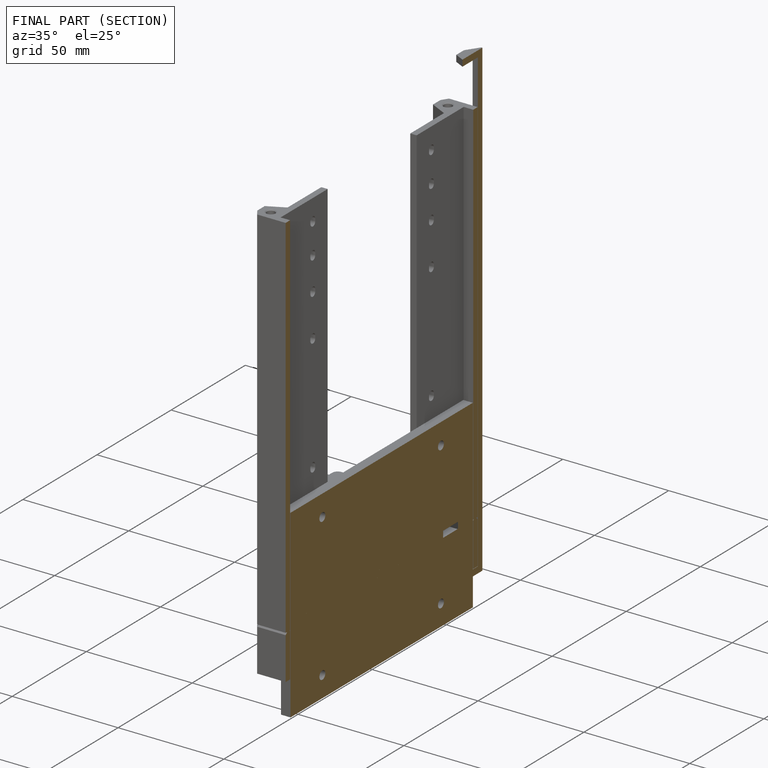
[diagram: finished part — half-section view (interior)]
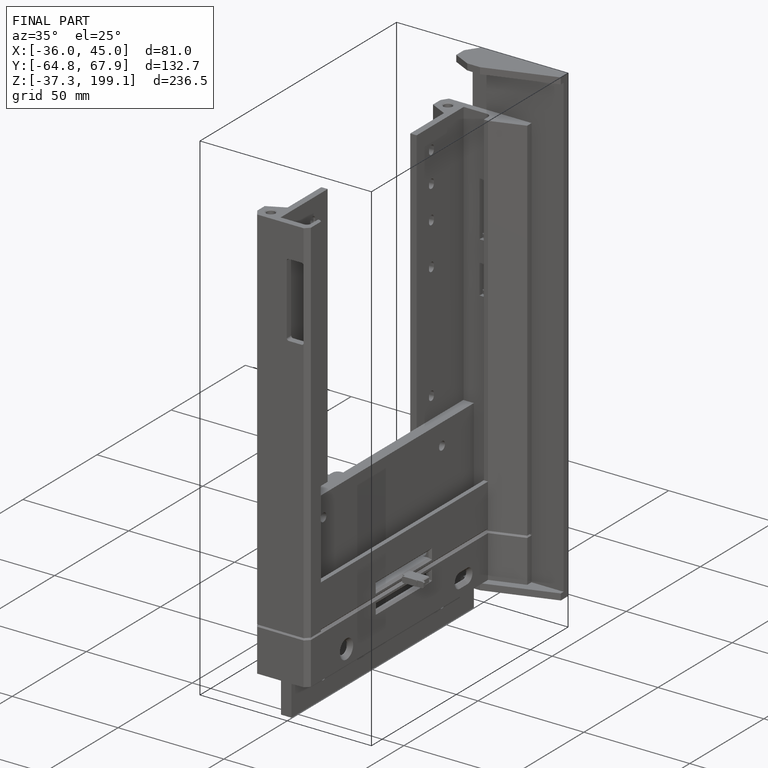
[diagram: finished part — iso view with bounding-box wireframe]
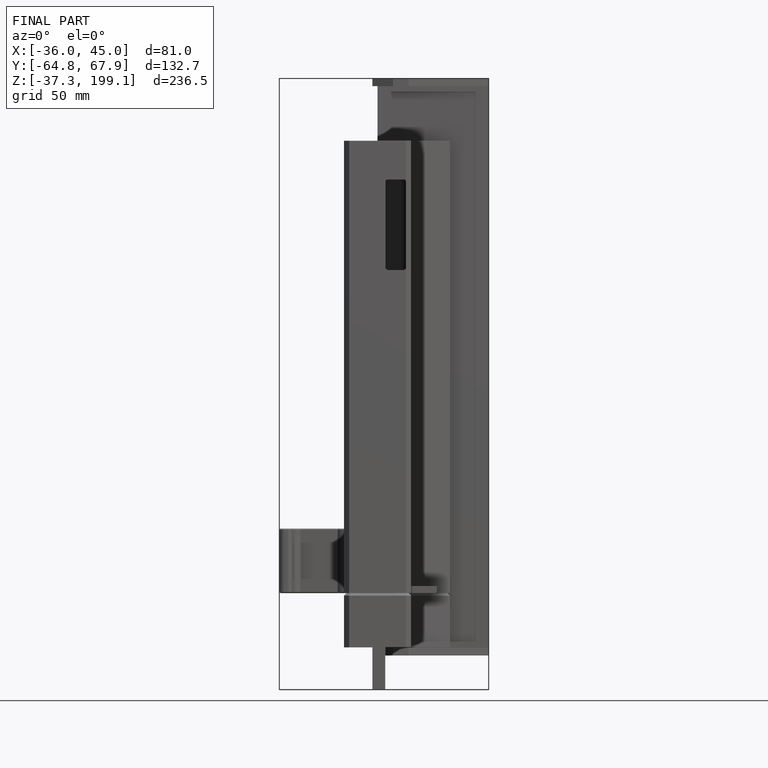
[diagram: finished part — front view with bounding-box wireframe]
